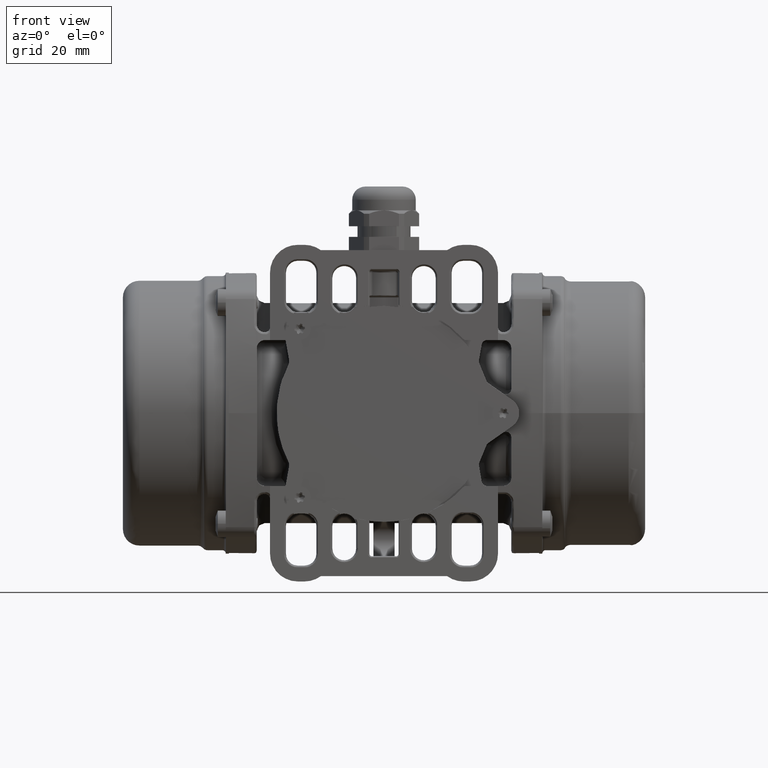
[diagram: clean part render]
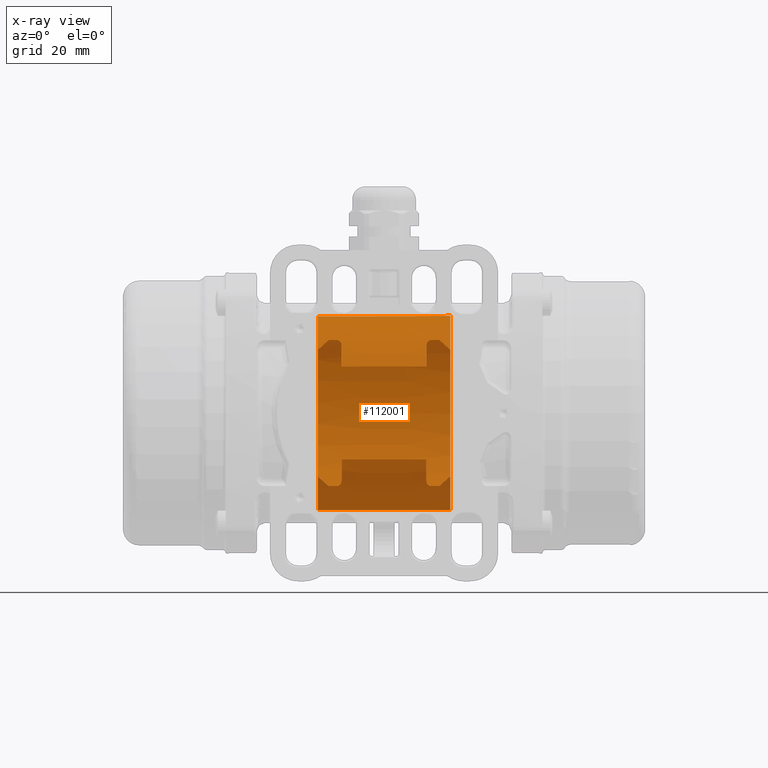
[diagram: x-ray — body ghosted, one internal face saturated and labeled with its STEP entity id]
A machine part, front view, then the same camera in x-ray: the body is ghosted and one INTERNAL B-rep face — a face not visible from any outside direction — is saturated and labeled: STEP entity #112001.
In plain terms, the highlighted face is a freeform B-spline surface patch.
Its self-contained STEP definition (entity closure, byte-faithful):
#161 = CARTESIAN_POINT ( 'NONE',  ( -16.01899122299236200, -26.03783805000156100, -25.77611785485611800 ) ) ;
#235 = CARTESIAN_POINT ( 'NONE',  ( -25.00000000000000000, 36.11027314400615000, -6.126592685133258200 ) ) ;
#277 = CARTESIAN_POINT ( 'NONE',  ( 16.34676661900307300, -25.23338887393017400, -26.63189186395566900 ) ) ;
#637 = CARTESIAN_POINT ( 'NONE',  ( -25.00000000000000400, 35.29042180498816400, -9.840274094785174300 ) ) ;
#790 = CARTESIAN_POINT ( 'NONE',  ( 25.00000000000000000, -3.017239993633374700, -36.74378361360039900 ) ) ;
#974 = CARTESIAN_POINT ( 'NONE',  ( -16.08110345773971900, -25.74911075387679600, -26.06450931056361500 ) ) ;
#1042 = CARTESIAN_POINT ( 'NONE',  ( -24.99999999999999600, 35.64547570673783400, -8.502520104704217400 ) ) ;
#1188 = CARTESIAN_POINT ( 'NONE',  ( 8.333333333333289500, -20.12106795193255200, -30.86265718652770200 ) ) ;
#1382 = CARTESIAN_POINT ( 'NONE',  ( -16.05784556097831100, -25.83350452068177500, -25.98101449191689500 ) ) ;
#1453 = CARTESIAN_POINT ( 'NONE',  ( -24.99999999999999600, -7.402331836127845400, 35.92042519266803400 ) ) ;
#1608 = CARTESIAN_POINT ( 'NONE',  ( 25.00000000000000000, -31.29263532903790000, -19.28054730153190000 ) ) ;
#1880 = CARTESIAN_POINT ( 'NONE',  ( -25.00000000000000400, 11.83192808236184000, 34.67264706926172800 ) ) ;
#1904 = VERTEX_POINT ( 'NONE', #83242 ) ;
#2296 = CARTESIAN_POINT ( 'NONE',  ( -25.00000000000000000, 5.266685251847276200, 36.26506394612944500 ) ) ;
#2383 = CARTESIAN_POINT ( 'NONE',  ( 18.00000002525300100, -24.28721582651700200, 27.49999087695979900 ) ) ;
#2638 = CARTESIAN_POINT ( 'NONE',  ( -16.47366881184741400, -24.98988267610029000, -26.79240977765200100 ) ) ;
#2706 = CARTESIAN_POINT ( 'NONE',  ( -25.00000000000000400, -23.49071100386491700, 28.10112917654096200 ) ) ;
#2948 = CARTESIAN_POINT ( 'NONE',  ( 17.05680724027558200, -24.55003702034545300, 27.26374936299466300 ) ) ;
#3020 = EDGE_CURVE ( 'NONE', #48195, #104908, #86166, .T. ) ;
#3051 = CARTESIAN_POINT ( 'NONE',  ( -16.47481342395198200, -24.98842728310417600, -26.79376433682574500 ) ) ;
#3122 = CARTESIAN_POINT ( 'NONE',  ( -25.00000000000000000, 26.57259259374020700, 25.20521342608809700 ) ) ;
#3163 = CARTESIAN_POINT ( 'NONE',  ( -20.70313610737026600, -24.19945507553908100, 27.50000000000000000 ) ) ;
#3171 = EDGE_CURVE ( 'NONE', #98552, #82542, #71793, .T. ) ;
#3882 = ORIENTED_EDGE ( 'NONE', *, *, #41155, .F. ) ;
#3916 = CARTESIAN_POINT ( 'NONE',  ( -25.00000000000000400, -24.06229484710469900, 27.61158744908760100 ) ) ;
#4176 = CARTESIAN_POINT ( 'NONE',  ( 8.333333333333289500, -9.015117181337789300, 35.72234969794015300 ) ) ;
#5581 = CARTESIAN_POINT ( 'NONE',  ( 25.00005420860682600, -25.24820296060522300, -26.76314244622503900 ) ) ;
#5781 = CARTESIAN_POINT ( 'NONE',  ( 8.333333333333289500, 24.96269080636405100, 27.09653809336195000 ) ) ;
#5972 = CARTESIAN_POINT ( 'NONE',  ( -17.10796079626761600, -24.44403719077006100, 27.29005052737927200 ) ) ;
#5988 = CARTESIAN_POINT ( 'NONE',  ( 25.00005420860682600, -21.50111108260533400, -29.92755132295461400 ) ) ;
#6186 = CARTESIAN_POINT ( 'NONE',  ( -25.00000000000000000, -3.011073971848025300, 36.66869413755080800 ) ) ;
#6373 = CARTESIAN_POINT ( 'NONE',  ( -16.22469867724105800, -25.38089768306499400, 26.42331002342297100 ) ) ;
#6590 = CARTESIAN_POINT ( 'NONE',  ( -25.00000000000000000, 24.92865850805954900, 27.05959666446850100 ) ) ;
#6769 = CARTESIAN_POINT ( 'NONE',  ( -16.11922755454928300, -25.63127340993339200, 26.18021814060070100 ) ) ;
#6863 = CARTESIAN_POINT ( 'NONE',  ( -25.00000000000000400, 17.19039242015417600, -32.34043510452392700 ) ) ;
#6969 = CARTESIAN_POINT ( 'NONE',  ( 8.333333333333289500, 9.065450351134849400, 35.70960530721455200 ) ) ;
#7218 = CARTESIAN_POINT ( 'NONE',  ( 16.00000000015689800, -26.37516396763240000, 25.49999985464939900 ) ) ;
#7262 = CARTESIAN_POINT ( 'NONE',  ( -25.00000000000000000, -8.330181497236726100, -35.67796735784273200 ) ) ;
#7378 = CARTESIAN_POINT ( 'NONE',  ( 8.333333333333289500, 3.066924835166410000, 36.71447000011699700 ) ) ;
#7477 = CARTESIAN_POINT ( 'NONE',  ( 16.00000000000000000, -27.53019386235906700, 24.30525842210814600 ) ) ;
#7670 = CARTESIAN_POINT ( 'NONE',  ( -25.00000000000000000, -19.72631544842911900, -30.85881838049735000 ) ) ;
#7710 = CARTESIAN_POINT ( 'NONE',  ( 16.16220239766304400, -25.58806855297231300, -26.29024256459174700 ) ) ;
#7781 = CARTESIAN_POINT ( 'NONE',  ( 25.00000000000000000, -9.021262455490029800, -35.74670031123115200 ) ) ;
#7821 = B_SPLINE_CURVE_WITH_KNOTS ( 'NONE', 3,
 ( #100228, #81648, #33891, #99827 ),
 .UNSPECIFIED., .F., .F.,
 ( 4, 4 ),
 ( 0.0000000000000000000, 1.000000000000000000 ),
 .UNSPECIFIED. ) ;
#8042 = ORIENTED_EDGE ( 'NONE', *, *, #43507, .F. ) ;
#8068 = CARTESIAN_POINT ( 'NONE',  ( -25.00000000000000700, 17.33779913326898700, -32.26135286368113200 ) ) ;
#8074 = CARTESIAN_POINT ( 'NONE',  ( -16.00000000000000000, -30.50525102807765200, 20.36106950411973000 ) ) ;
#8203 = CARTESIAN_POINT ( 'NONE',  ( 16.00000000031370100, -26.37516396763254900, -25.49999985464960200 ) ) ;
#8254 = EDGE_LOOP ( 'NONE', ( #103406, #14920, #49331, #83998, #121080, #55251, #22786, #93608, #9240, #97352, #121778, #3882, #115360, #8042, #74408, #91643, #89100, #12823, #44845, #54600, #93346, #80543 ) ) ;
#8371 = EDGE_CURVE ( 'NONE', #83782, #122222, #7821, .T. ) ;
#8464 = CARTESIAN_POINT ( 'NONE',  ( -25.00000000000000000, -24.27183731456379700, -27.42757866006659700 ) ) ;
#8502 = CARTESIAN_POINT ( 'NONE',  ( 16.03163763211466300, -26.02783918738051100, -25.85448438657730100 ) ) ;
#8607 = EDGE_CURVE ( 'NONE', #31695, #95200, #87922, .T. ) ;
#8798 = CARTESIAN_POINT ( 'NONE',  ( -23.71710881238577400, -26.71012189833259500, -25.12453976391298100 ) ) ;
#8823 = CARTESIAN_POINT ( 'NONE',  ( 16.02826386626414700, -26.04700254603368500, 25.83517173931285500 ) ) ;
#8865 = CARTESIAN_POINT ( 'NONE',  ( -24.99999999999998900, 30.59354016913768600, -20.15799043763112400 ) ) ;
#8907 = CARTESIAN_POINT ( 'NONE',  ( 16.72593699939901100, -24.79249630020993000, -27.04312409782172100 ) ) ;
#9156 = CARTESIAN_POINT ( 'NONE',  ( -16.04150713558822300, -25.90860067574659800, 25.90600689977045000 ) ) ;
#9191 = CARTESIAN_POINT ( 'NONE',  ( -16.11249262134674300, -25.65056212019129900, -26.16133807844064300 ) ) ;
#9240 = ORIENTED_EDGE ( 'NONE', *, *, #28133, .F. ) ;
#9266 = CARTESIAN_POINT ( 'NONE',  ( -24.99999999999999600, 26.32391157734029700, -25.46481500612607000 ) ) ;
#9300 = CARTESIAN_POINT ( 'NONE',  ( 16.47981779921971000, -25.05456594832409700, -26.79963685100729300 ) ) ;
#9600 = CARTESIAN_POINT ( 'NONE',  ( -16.46960391456276800, -24.99505693225005500, -26.78759378337122100 ) ) ;
#9611 = CARTESIAN_POINT ( 'NONE',  ( 16.00000000000000000, -32.24359288677179300, 17.49999999998810200 ) ) ;
#9667 = CARTESIAN_POINT ( 'NONE',  ( -24.99999999999999600, 34.50454986201300800, -12.29742133629923200 ) ) ;
#9695 = EDGE_CURVE ( 'NONE', #21240, #76437, #94603, .T. ) ;
#9724 = B_SPLINE_CURVE_WITH_KNOTS ( 'NONE', 3,
 ( #12226, #69057, #77325, #22143, #88019, #30395 ),
 .UNSPECIFIED., .F., .F.,
 ( 4, 2, 4 ),
 ( 0.0000000000000000000, 0.5000000000000000000, 1.000000000000000000 ),
 .UNSPECIFIED. ) ;
#9783 = CARTESIAN_POINT ( 'NONE',  ( -16.00000000000000000, -28.53661439245352900, -23.03920855094261500 ) ) ;
#9788 = EDGE_CURVE ( 'NONE', #91199, #16096, #114307, .T. ) ;
#10069 = CARTESIAN_POINT ( 'NONE',  ( -25.00000000000000000, 36.57627564579942700, 2.228605263269550600 ) ) ;
#10222 = CARTESIAN_POINT ( 'NONE',  ( -8.333333333333300200, 9.059270766710080000, -35.68526338130644900 ) ) ;
#10399 = CARTESIAN_POINT ( 'NONE',  ( 16.00000000015689800, -32.24359288677199900, -17.49999999998820100 ) ) ;
#10422 = CARTESIAN_POINT ( 'NONE',  ( -16.11565716273720400, -25.64143662912836800, -26.17027201040587100 ) ) ;
#10488 = CARTESIAN_POINT ( 'NONE',  ( -25.00000000000000000, 34.76955973095505900, -11.51388543603337700 ) ) ;
#10634 = CARTESIAN_POINT ( 'NONE',  ( 8.333333333333289500, 20.16457561410519600, -30.83420500907254800 ) ) ;
#10837 = CARTESIAN_POINT ( 'NONE',  ( -16.42078507798734000, -25.05931790616569200, -26.72771349583479900 ) ) ;
#10909 = CARTESIAN_POINT ( 'NONE',  ( -25.00000000000000400, -14.23640878746536300, 33.74509089601519900 ) ) ;
#11312 = CARTESIAN_POINT ( 'NONE',  ( -25.00000000000000400, 24.72944555099873700, 27.04481029954458300 ) ) ;
#11659 = CARTESIAN_POINT ( 'NONE',  ( -16.67294089073127200, -24.76317023729879100, -27.00225331486403800 ) ) ;
#11725 = CARTESIAN_POINT ( 'NONE',  ( -25.00000000000000000, 22.50515637061882000, 28.89522792631442300 ) ) ;
#12144 = CARTESIAN_POINT ( 'NONE',  ( -25.00000000000000000, -11.55910531959511400, 34.77633757196903000 ) ) ;
#12226 = CARTESIAN_POINT ( 'NONE',  ( 16.00000000031370100, -26.37516396763254900, -25.49999985464960200 ) ) ;
#12291 = CARTESIAN_POINT ( 'NONE',  ( -17.99999997210860100, -24.20556235815179800, 27.49998990723825200 ) ) ;
#12382 = CARTESIAN_POINT ( 'NONE',  ( 16.22345796229705100, -25.44825066734263400, 26.42642225362186200 ) ) ;
#12487 = CARTESIAN_POINT ( 'NONE',  ( -17.69909968408301300, -24.20627582288897300, -27.49999999999999600 ) ) ;
#12559 = CARTESIAN_POINT ( 'NONE',  ( -25.00000000000000400, 17.58296800518421000, 32.12838360053648800 ) ) ;
#12618 = VERTEX_POINT ( 'NONE', #94392 ) ;
#12823 = ORIENTED_EDGE ( 'NONE', *, *, #32934, .F. ) ;
#13097 = FACE_OUTER_BOUND ( 'NONE', #8254, .T. ) ;
#13368 = CARTESIAN_POINT ( 'NONE',  ( -25.00000000000000000, -26.70009887296479800, 25.13324806834705100 ) ) ;
#14021 = CARTESIAN_POINT ( 'NONE',  ( 16.57118478039459900, -24.94008620801573200, 26.90684907578650400 ) ) ;
#14858 = CARTESIAN_POINT ( 'NONE',  ( -25.00000000000000000, -24.89063732319455000, 27.09444901341550200 ) ) ;
#14920 = ORIENTED_EDGE ( 'NONE', *, *, #3020, .F. ) ;
#15045 = CARTESIAN_POINT ( 'NONE',  ( -17.39595930600310000, -24.31122938360255900, 27.40821598081700100 ) ) ;
#15266 = CARTESIAN_POINT ( 'NONE',  ( 8.333333333333289500, 29.08049819591840200, -22.62040966549399800 ) ) ;
#15479 = CARTESIAN_POINT ( 'NONE',  ( 25.00005420860682600, 35.05559934589177800, 11.36074742704982300 ) ) ;
#15562 = CARTESIAN_POINT ( 'NONE',  ( -25.00000000000000000, -26.37542883668022100, -25.43867921855281400 ) ) ;
#15668 = CARTESIAN_POINT ( 'NONE',  ( 8.333333333333289500, -3.015184653038260400, 36.71875378825055200 ) ) ;
#15860 = CARTESIAN_POINT ( 'NONE',  ( -16.14003174418654400, -25.57464572523494100, 26.23554859876075800 ) ) ;
#16066 = CARTESIAN_POINT ( 'NONE',  ( 8.333333333333289500, 34.84789825794784700, 11.95752047022544000 ) ) ;
#16096 = VERTEX_POINT ( 'NONE', #84226 ) ;
#16258 = CARTESIAN_POINT ( 'NONE',  ( -16.18267870390163300, -25.47160838588618100, 26.33569872156957800 ) ) ;
#16355 = CARTESIAN_POINT ( 'NONE',  ( -25.00000000000000000, 21.85386193663260100, -29.39087867210198400 ) ) ;
#16467 = CARTESIAN_POINT ( 'NONE',  ( -8.333333333333300200, 20.15083016378885400, 30.81318646441745200 ) ) ;
#16661 = CARTESIAN_POINT ( 'NONE',  ( -17.69688272086948200, -24.22613345806334500, 27.48294382623887300 ) ) ;
#16760 = CARTESIAN_POINT ( 'NONE',  ( -25.00000000000000700, -23.40802656571941000, -28.18349137886913900 ) ) ;
#16867 = CARTESIAN_POINT ( 'NONE',  ( -25.00000000000000000, 34.80038919420150000, 11.94121846549440000 ) ) ;
#17057 = CARTESIAN_POINT ( 'NONE',  ( -16.00000000000002800, -26.24368848057907800, 25.56671920168275500 ) ) ;
#17166 = CARTESIAN_POINT ( 'NONE',  ( -25.00000000000000700, -20.35405384155992100, -30.44995038654911900 ) ) ;
#17262 = CARTESIAN_POINT ( 'NONE',  ( 25.00000000000000000, -29.06788686680360100, -22.67774944367085200 ) ) ;
#17558 = CARTESIAN_POINT ( 'NONE',  ( -24.99999999999999300, 14.74387845902516500, -33.54711119491121700 ) ) ;
#17602 = CARTESIAN_POINT ( 'NONE',  ( 16.51909269346238700, -25.00668849228647500, -26.84442219822662800 ) ) ;
#17971 = CARTESIAN_POINT ( 'NONE',  ( -25.00000000000000400, -17.65313925592431200, -32.11438849019769700 ) ) ;
#18012 = CARTESIAN_POINT ( 'NONE',  ( 16.00000000031370100, -26.37516396763254900, -25.49999985464960200 ) ) ;
#18149 = CARTESIAN_POINT ( 'NONE',  ( 20.70299477747989400, -24.29335213941006400, 27.50000000000000000 ) ) ;
#18325 = CARTESIAN_POINT ( 'NONE',  ( 16.11554386901841700, -25.71079479674700600, 26.16995368158214300 ) ) ;
#18365 = CARTESIAN_POINT ( 'NONE',  ( -24.99999999999999600, 36.62498699990635500, 0.8929189167557792800 ) ) ;
#18410 = CARTESIAN_POINT ( 'NONE',  ( 16.12019241098148100, -25.69763897676294900, -26.18288222590260300 ) ) ;
#18775 = CARTESIAN_POINT ( 'NONE',  ( -24.99999999999999300, 24.02487677097021600, -27.67259600810226400 ) ) ;
#18808 = CARTESIAN_POINT ( 'NONE',  ( 16.06530225167562900, -25.87488574303018400, -26.00771956441676400 ) ) ;
#19013 = CARTESIAN_POINT ( 'NONE',  ( -5.333333333288132700, -32.20717649014461900, 17.50000000000000000 ) ) ;
#19119 = CARTESIAN_POINT ( 'NONE',  ( -16.04255991151117300, -25.89779240050851100, -25.91697104662836900 ) ) ;
#19187 = CARTESIAN_POINT ( 'NONE',  ( -25.00000000000000000, 33.30099311587651600, 15.24912172274639800 ) ) ;
#19332 = CARTESIAN_POINT ( 'NONE',  ( -25.00000000000000000, -29.00848382824749900, -22.63140526905845100 ) ) ;
#19488 = CARTESIAN_POINT ( 'NONE',  ( 20.49390155713560100, -24.29286683651725200, 27.49999089121929800 ) ) ;
#19603 = CARTESIAN_POINT ( 'NONE',  ( -25.00000000000000000, 35.08665232170233800, 10.50339329907777900 ) ) ;
#19739 = CARTESIAN_POINT ( 'NONE',  ( -8.333333333333300200, 3.064834225190155200, -36.68944309486810300 ) ) ;
#19882 = EDGE_CURVE ( 'NONE', #1904, #16096, #108196, .T. ) ;
#20010 = CARTESIAN_POINT ( 'NONE',  ( -25.00000000000000400, 26.73685250694498100, 25.03092512804799700 ) ) ;
#20156 = CARTESIAN_POINT ( 'NONE',  ( 8.333333333333289500, 14.81691559992836100, -33.73154788877674500 ) ) ;
#20417 = CARTESIAN_POINT ( 'NONE',  ( -25.00000000000000400, 7.592477896159740800, 35.82943349136009900 ) ) ;
#20840 = CARTESIAN_POINT ( 'NONE',  ( -25.00000000000000000, 9.056690995861984600, 35.49255684519044300 ) ) ;
#21228 = CARTESIAN_POINT ( 'NONE',  ( -24.99999999999999600, 22.22276765220928100, 29.11258532960262000 ) ) ;
#21240 = VERTEX_POINT ( 'NONE', #50964 ) ;
#21469 = CARTESIAN_POINT ( 'NONE',  ( 16.83185099988190100, -24.70336731787672900, 27.12477580739670200 ) ) ;
#21645 = CARTESIAN_POINT ( 'NONE',  ( -25.00000000000000400, -15.54445504413278200, 33.17615011183068700 ) ) ;
#22054 = CARTESIAN_POINT ( 'NONE',  ( -24.99999999999999600, 7.754110143997368500, 35.79480329957377200 ) ) ;
#22143 = CARTESIAN_POINT ( 'NONE',  ( 16.00000000000000000, -30.56334984603030200, -20.36027064669884700 ) ) ;
#22352 = B_SPLINE_CURVE_WITH_KNOTS ( 'NONE', 3,
 ( #99820, #24432, #43372, #72563 ),
 .UNSPECIFIED., .F., .F.,
 ( 4, 4 ),
 ( 0.0000000000000000000, 1.000000000000000000 ),
 .UNSPECIFIED. ) ;
#22786 = ORIENTED_EDGE ( 'NONE', *, *, #74036, .F. ) ;
#23009 = CARTESIAN_POINT ( 'NONE',  ( -18.83130046335768500, -24.20366649823641600, 27.50000000000000000 ) ) ;
#23539 = CARTESIAN_POINT ( 'NONE',  ( 8.333333333333289500, -31.27131881995815700, 19.26741341372435200 ) ) ;
#23598 = VERTEX_POINT ( 'NONE', #9611 ) ;
#23752 = CARTESIAN_POINT ( 'NONE',  ( 25.00005420860682600, 11.49414554232422200, 35.01208704942970200 ) ) ;
#24354 = CARTESIAN_POINT ( 'NONE',  ( 8.333333333333390800, -20.12106795193250300, 30.86265718652770200 ) ) ;
#24432 = CARTESIAN_POINT ( 'NONE',  ( 18.83130055328039600, -24.28909181786012900, 27.50000000000000000 ) ) ;
#24561 = CARTESIAN_POINT ( 'NONE',  ( 25.00005420860682600, 26.10682201884868500, -26.00760411504862500 ) ) ;
#24756 = CARTESIAN_POINT ( 'NONE',  ( -25.00000000000000000, 29.04085198160900200, -22.58957066117839900 ) ) ;
#24945 = CARTESIAN_POINT ( 'NONE',  ( -17.28525802278160100, -24.35617188759428900, 27.36833676123023600 ) ) ;
#25159 = CARTESIAN_POINT ( 'NONE',  ( -8.333333333333300200, 9.059270766710080000, 35.68526338130644900 ) ) ;
#25328 = CARTESIAN_POINT ( 'NONE',  ( -15.99999999982270200, -26.30835756529455300, 25.49999991771964900 ) ) ;
#25348 = CARTESIAN_POINT ( 'NONE',  ( -16.67392415751820800, -24.76669446318640400, 26.99877905948294200 ) ) ;
#25367 = CARTESIAN_POINT ( 'NONE',  ( 25.00005420860682600, 21.72825253304514000, 29.76314279418771100 ) ) ;
#25404 = B_SPLINE_CURVE_WITH_KNOTS ( 'NONE', 3,
 ( #94906, #75928, #84599, #104403, #84995, #65654, #161, #48363, #38059, #103190, #19119, #1382, #974, #29415, #38877, #46715, #9191, #10422, #94082, #66863, #47118, #28582, #76333, #114290, #67277, #113039, #10837, #56628, #66041, #9600, #2638, #3051, #87039, #11659, #96974, #30652, #96563, #105655, #106081, #115527, #68512, #30245, #40505, #50421, #12487, #78411 ),
 .UNSPECIFIED., .F., .F.,
 ( 4, 2, 2, 1, 2, 2, 2, 2, 1, 1, 1, 2, 2, 2, 2, 1, 1, 1, 2, 2, 2, 2, 1, 1, 1, 2, 2, 4 ),
 ( 0.0000000000000000000, 0.06249999999995578500, 0.09374999999993367800, 0.1093749999999241900, 0.1171874999999194400, 0.1249999999999147100, 0.1874999999998688500, 0.2187499999998459300, 0.2343749999998348300, 0.2421874999998320200, 0.2460937499998334900, 0.2480468749998350200, 0.2499999999998365200, 0.3749999999999061300, 0.4374999999999417700, 0.4687499999999589800, 0.4843749999999675800, 0.4921874999999699100, 0.4960937499999710200, 0.4999999999999721300, 0.6249999999999941200, 0.6875000000000050000, 0.7187500000000121000, 0.7343750000000157700, 0.7421875000000168800, 0.7460937500000181000, 0.7500000000000193200, 1.000000000000000000 ),
 .UNSPECIFIED. ) ;
#25556 = CARTESIAN_POINT ( 'NONE',  ( -25.00000000000000000, 24.92865850805949900, -27.05959666446850100 ) ) ;
#25754 = CARTESIAN_POINT ( 'NONE',  ( -16.99432263647801700, -24.50779482343402200, 27.23314758877237900 ) ) ;
#25857 = CARTESIAN_POINT ( 'NONE',  ( -25.00000000000000400, -2.669836258230541900, -36.53982749296920900 ) ) ;
#25960 = CARTESIAN_POINT ( 'NONE',  ( 25.00000000000000000, 29.10032130307309800, 22.63582916765180300 ) ) ;
#26212 = CARTESIAN_POINT ( 'NONE',  ( 16.00061918218805700, -26.30134024846118700, 25.57615606795261000 ) ) ;
#26259 = CARTESIAN_POINT ( 'NONE',  ( -25.00000000000000400, -16.17984199105716700, -32.86340320242229000 ) ) ;
#26364 = CARTESIAN_POINT ( 'NONE',  ( 25.00000000000000000, 36.36508392665694300, -6.065487045046349800 ) ) ;
#26655 = CARTESIAN_POINT ( 'NONE',  ( -25.00000000000000400, -19.77375888124744900, -30.82843807352042000 ) ) ;
#26661 = CARTESIAN_POINT ( 'NONE',  ( -16.00000000000000000, -31.39460290462824700, 18.96102806417340100 ) ) ;
#26761 = CARTESIAN_POINT ( 'NONE',  ( -8.333333333333300200, -29.02828484109955200, -22.64685332726254800 ) ) ;
#27060 = CARTESIAN_POINT ( 'NONE',  ( -24.99999999999999600, 17.48322694812946000, -32.18277179479258600 ) ) ;
#27097 = CARTESIAN_POINT ( 'NONE',  ( 16.88475908883419800, -24.65884443058000400, -27.16556649617364300 ) ) ;
#27409 = CARTESIAN_POINT ( 'NONE',  ( 16.08860465332936900, -25.79271511806905400, 26.08923323283560300 ) ) ;
#27456 = CARTESIAN_POINT ( 'NONE',  ( -25.00000000000000000, -3.850927632394672600, -36.42218853086328100 ) ) ;
#27494 = CARTESIAN_POINT ( 'NONE',  ( 16.48949485239143800, -25.04256036172844100, -26.81087541455218200 ) ) ;
#27804 = CARTESIAN_POINT ( 'NONE',  ( 16.10012733646922500, -25.75645571476612600, 26.12501268455642000 ) ) ;
#27850 = CARTESIAN_POINT ( 'NONE',  ( -25.00000000000000700, 35.84796701468983600, 7.603689727470647400 ) ) ;
#28133 = EDGE_CURVE ( 'NONE', #12618, #21240, #115570, .T. ) ;
#28258 = CARTESIAN_POINT ( 'NONE',  ( -25.00000000000000000, 36.21844556248009900, -5.442272675517764400 ) ) ;
#28290 = CARTESIAN_POINT ( 'NONE',  ( 16.18252135292899000, -25.54174123043226200, -26.33535579138231600 ) ) ;
#28582 = CARTESIAN_POINT ( 'NONE',  ( -16.16609161120329200, -25.49857852265304100, -26.31006054340986500 ) ) ;
#28647 = CARTESIAN_POINT ( 'NONE',  ( -25.00000000000000400, 33.04938809050502600, 15.78426576589394200 ) ) ;
#28805 = CARTESIAN_POINT ( 'NONE',  ( -25.00000000000000000, -32.19001765206735400, -17.46978501755509700 ) ) ;
#29062 = CARTESIAN_POINT ( 'NONE',  ( -25.00000000000000400, 25.23730646979107200, -26.54936758286127600 ) ) ;
#29209 = CARTESIAN_POINT ( 'NONE',  ( -8.333333333333300200, -20.10735215919090300, -30.84161924706860000 ) ) ;
#29415 = CARTESIAN_POINT ( 'NONE',  ( -16.08892087827995700, -25.72298584043098300, -26.09025145292782000 ) ) ;
#29487 = CARTESIAN_POINT ( 'NONE',  ( -25.00000000000000000, 36.17469380931808600, -5.727699953793938400 ) ) ;
#29605 = CARTESIAN_POINT ( 'NONE',  ( -18.94422221866650300, -24.20343095407058000, -27.50000000000000000 ) ) ;
#29646 = CARTESIAN_POINT ( 'NONE',  ( -8.333333333333300200, -24.90762751931960400, -27.11294351786154900 ) ) ;
#29701 = CARTESIAN_POINT ( 'NONE',  ( 18.00000002133040100, -24.28721755750935100, -27.49998934097154900 ) ) ;
#29809 = CARTESIAN_POINT ( 'NONE',  ( 20.83266667732399900, -24.29363617065340000, -27.49998934523609900 ) ) ;
#29911 = CARTESIAN_POINT ( 'NONE',  ( -25.00000000000000000, -3.376936861377315400, 36.46918420200135100 ) ) ;
#30056 = CARTESIAN_POINT ( 'NONE',  ( -25.00000000000000000, 3.062743615213894700, -36.66441618961920300 ) ) ;
#30175 = B_SPLINE_CURVE_WITH_KNOTS ( 'NONE', 3,
 ( #92717, #18149, #36308, #112089 ),
 .UNSPECIFIED., .F., .F.,
 ( 4, 4 ),
 ( 0.0000000000000000000, 1.000000000000000000 ),
 .UNSPECIFIED. ) ;
#30245 = CARTESIAN_POINT ( 'NONE',  ( -17.09763198547122400, -24.44984584339936300, -27.28486606494234200 ) ) ;
#30309 = CARTESIAN_POINT ( 'NONE',  ( -24.99999999999999300, 22.83088600651669600, 28.63987580064678800 ) ) ;
#30395 = CARTESIAN_POINT ( 'NONE',  ( 16.00000000015689800, -32.24359288677199900, -17.49999999998820100 ) ) ;
#30652 = CARTESIAN_POINT ( 'NONE',  ( -16.88556338589428300, -24.58707647417512700, -27.16197270099163700 ) ) ;
#30727 = CARTESIAN_POINT ( 'NONE',  ( -25.00000000000000000, 10.56185630077508400, 35.08899846132980100 ) ) ;
#30731 = EDGE_CURVE ( 'NONE', #105347, #12618, #9724, .T. ) ;
#30766 = CARTESIAN_POINT ( 'NONE',  ( -21.10565977434939800, -24.43393352711345300, 27.29103868951585100 ) ) ;
#31135 = CARTESIAN_POINT ( 'NONE',  ( -25.00000000000000000, 18.23999926290743500, 31.76144504510727300 ) ) ;
#31370 = CARTESIAN_POINT ( 'NONE',  ( 16.42069622818636900, -25.13140483720525600, 26.72760129337180900 ) ) ;
#31420 = EDGE_CURVE ( 'NONE', #42362, #95200, #30175, .T. ) ;
#31452 = EDGE_CURVE ( 'NONE', #48195, #87992, #63354, .T. ) ;
#31535 = CARTESIAN_POINT ( 'NONE',  ( -25.00000000000000400, 3.663272137327356700, 36.44656211051693600 ) ) ;
#31695 = VERTEX_POINT ( 'NONE', #45892 ) ;
#32165 = CARTESIAN_POINT ( 'NONE',  ( 17.08091846224091300, -24.53608333390220500, 27.27634293038595500 ) ) ;
#32187 = CARTESIAN_POINT ( 'NONE',  ( 25.00000000000000000, -20.13478374467409900, 30.88369512598685100 ) ) ;
#32563 = CARTESIAN_POINT ( 'NONE',  ( 17.09815216732838300, -24.52634826868556000, 27.28512896763754400 ) ) ;
#32934 = EDGE_CURVE ( 'NONE', #59288, #90198, #51220, .T. ) ;
#32995 = CARTESIAN_POINT ( 'NONE',  ( 8.333333333333289500, -14.76937648145580100, 33.75237624243155200 ) ) ;
#33212 = CARTESIAN_POINT ( 'NONE',  ( 25.00005420860682600, 29.84566128442810800, -21.61476648186482000 ) ) ;
#33592 = CARTESIAN_POINT ( 'NONE',  ( -16.34697553272154400, -25.16172375489309900, 26.63219202597860800 ) ) ;
#33608 = CARTESIAN_POINT ( 'NONE',  ( 25.00005420860682600, 5.889388280611889600, 36.37687115867888100 ) ) ;
#33814 = CARTESIAN_POINT ( 'NONE',  ( -8.333333333333300200, -31.25000231087845400, 19.25427952591675100 ) ) ;
#33891 = CARTESIAN_POINT ( 'NONE',  ( 23.71434765809497200, -26.80565712668821000, -25.12687930452491300 ) ) ;
#33998 = CARTESIAN_POINT ( 'NONE',  ( -17.16707898652095900, -24.41215105263275100, 27.31849659205340300 ) ) ;
#34019 = CARTESIAN_POINT ( 'NONE',  ( 25.00005420860682600, -16.56701954118351900, 32.91652571271136200 ) ) ;
#34216 = CARTESIAN_POINT ( 'NONE',  ( 25.00000000000000000, 34.87165278982104900, 11.96567147259097800 ) ) ;
#34331 = CARTESIAN_POINT ( 'NONE',  ( -15.99999999989780100, -26.30835756529450000, -25.49999991771955300 ) ) ;
#34415 = CARTESIAN_POINT ( 'NONE',  ( -16.51904109009037600, -24.93398832077293600, 26.84436532278295900 ) ) ;
#34525 = CARTESIAN_POINT ( 'NONE',  ( -15.99999999982270200, -26.30835756529455300, 25.49999991771964900 ) ) ;
#34555 = CARTESIAN_POINT ( 'NONE',  ( 17.28562385291375100, -24.43394790926245700, -27.36847594542149100 ) ) ;
#34627 = CARTESIAN_POINT ( 'NONE',  ( 25.00000000000000000, 9.071629935559620600, 35.73394723312269900 ) ) ;
#34814 = CARTESIAN_POINT ( 'NONE',  ( -16.12175244665320400, -25.62417573134777600, 26.18716144157576800 ) ) ;
#34836 = CARTESIAN_POINT ( 'NONE',  ( 25.00005420860682600, 29.84566128442810800, 21.61476648186486900 ) ) ;
#35027 = CARTESIAN_POINT ( 'NONE',  ( 8.333333333333289500, 32.40577525386589700, 17.52780759248529900 ) ) ;
#35179 = B_SPLINE_CURVE_WITH_KNOTS ( 'NONE', 3,
 ( #62856, #43095, #80143, #108635, #34019, #90034, #53808, #43900, #33608, #23752, #109036, #25367, #90857, #34836, #52578, #15479, #89609, #119708, #100767, #71056, #100362, #33212, #24561, #118508, #99146, #118908, #52176, #62048, #52995, #62448, #119304, #5988, #5581, #118104, #61630 ),
 .UNSPECIFIED., .F., .F.,
 ( 4, 1, 1, 1, 1, 1, 1, 1, 1, 1, 1, 1, 1, 1, 1, 1, 1, 1, 1, 1, 1, 1, 1, 1, 1, 1, 1, 1, 1, 1, 1, 1, 4 ),
 ( 0.0000000000000000000, 0.01772047723071383500, 0.04987244541533290100, 0.08202441359995192600, 0.1141763817845711000, 0.1463283499691900000, 0.1784803181538091900, 0.2106322863384283700, 0.2427842545230475000, 0.2749362227076667100, 0.3070881908922858900, 0.3392401590769045200, 0.3713921272615237100, 0.4035440954461429500, 0.4356960636307621300, 0.4678480318153813200, 0.5000000000000004400, 0.5321519681846190700, 0.5643039363692377000, 0.5964559045538568900, 0.6286078727384761800, 0.6607598409230952500, 0.6929118091077155500, 0.7250637772923336200, 0.7572157454769528100, 0.7893677136615717700, 0.8215196818461898400, 0.8536716500308113600, 0.8858236182154301000, 0.9179755864000485000, 0.9501275545846672400, 0.9822795227692858700, 1.000000000000000000 ),
 .UNSPECIFIED. ) ;
#35215 = CARTESIAN_POINT ( 'NONE',  ( -16.49827427798637200, -24.95917619913010900, 26.82096948500401400 ) ) ;
#35316 = CARTESIAN_POINT ( 'NONE',  ( -25.00000000000000000, 7.422816335092905500, -35.86496798398635400 ) ) ;
#35435 = CARTESIAN_POINT ( 'NONE',  ( -8.333333333333300200, 29.06067508876370200, 22.60499016333620000 ) ) ;
#35724 = CARTESIAN_POINT ( 'NONE',  ( -25.00000000000000400, -21.02260495863362200, -29.99702540555435000 ) ) ;
#35829 = CARTESIAN_POINT ( 'NONE',  ( -25.00000000000000000, 36.29076836004929900, -6.053091635553750300 ) ) ;
#36128 = CARTESIAN_POINT ( 'NONE',  ( -25.00000000000000400, -6.928594895464307500, -35.98612431873965500 ) ) ;
#36174 = CARTESIAN_POINT ( 'NONE',  ( 16.08850906465207200, -25.79081731330885000, -26.09121953446631500 ) ) ;
#36308 = CARTESIAN_POINT ( 'NONE',  ( 20.92390853900970200, -24.37197956554419100, 27.43160297126988900 ) ) ;
#36525 = CARTESIAN_POINT ( 'NONE',  ( -25.00000000000000000, 18.34587952930021300, -31.71235718611974300 ) ) ;
#36720 = CARTESIAN_POINT ( 'NONE',  ( 23.79391453780458600, -26.87696370910047600, 25.04321362140315400 ) ) ;
#36886 = CARTESIAN_POINT ( 'NONE',  ( 16.02634860280453200, -26.05834005181112900, 25.82373046350397100 ) ) ;
#36931 = CARTESIAN_POINT ( 'NONE',  ( -25.00000000000000000, -20.01635639405152000, -30.67181943364180400 ) ) ;
#36973 = CARTESIAN_POINT ( 'NONE',  ( 16.12918474732497400, -25.67283772742732100, -26.20723441242528300 ) ) ;
#37279 = CARTESIAN_POINT ( 'NONE',  ( 16.11781211957987000, -25.70434608941695500, 26.17629178865295400 ) ) ;
#37333 = CARTESIAN_POINT ( 'NONE',  ( -25.00000000000000400, 36.20110460294058900, -5.556479156151636900 ) ) ;
#37728 = CARTESIAN_POINT ( 'NONE',  ( -25.00000000000000400, 35.05334609979921400, 10.61400308809880300 ) ) ;
#38059 = CARTESIAN_POINT ( 'NONE',  ( -16.02644649529746000, -25.99002115081370300, -25.82432077140022400 ) ) ;
#38122 = CARTESIAN_POINT ( 'NONE',  ( -24.99999999999999600, 22.93067286218736800, -28.57396156245500800 ) ) ;
#38243 = CARTESIAN_POINT ( 'NONE',  ( -16.00000000000000000, -31.39477804467174900, -18.96070593973293900 ) ) ;
#38325 = CARTESIAN_POINT ( 'NONE',  ( 20.83266667732399900, -24.29363617065340000, -27.49998934523609900 ) ) ;
#38439 = CARTESIAN_POINT ( 'NONE',  ( -5.333333333288132700, -32.20717649014462600, -17.50000000000000000 ) ) ;
#38538 = CARTESIAN_POINT ( 'NONE',  ( -25.00000000000000000, 36.29042479436568400, 4.941498007007892200 ) ) ;
#38678 = CARTESIAN_POINT ( 'NONE',  ( -8.333333333333300200, 20.15083016378885400, -30.81318646441745200 ) ) ;
#38877 = CARTESIAN_POINT ( 'NONE',  ( -16.10038808093266000, -25.68680798349606000, -26.12580316691975900 ) ) ;
#38941 = CARTESIAN_POINT ( 'NONE',  ( -25.00000000000000000, 33.36027787587889300, -15.14525928814605900 ) ) ;
#39097 = CARTESIAN_POINT ( 'NONE',  ( -8.333333333333300200, -32.21199036036230000, -17.48170978548515100 ) ) ;
#39345 = CARTESIAN_POINT ( 'NONE',  ( -25.00000000000000000, -18.26352472335952000, 31.75270378066566600 ) ) ;
#39749 = CARTESIAN_POINT ( 'NONE',  ( -25.00000000000000700, 2.167344763770609800, 36.56086365256599900 ) ) ;
#40163 = CARTESIAN_POINT ( 'NONE',  ( -25.00000000000000000, -20.45635710542581300, 30.39378751339137000 ) ) ;
#40505 = CARTESIAN_POINT ( 'NONE',  ( -17.10007317749807100, -24.44846239469669400, -27.28610089736567800 ) ) ;
#40575 = CARTESIAN_POINT ( 'NONE',  ( -25.00000000000000700, -3.141296325228952300, 36.49025003149996800 ) ) ;
#40989 = CARTESIAN_POINT ( 'NONE',  ( -24.99999999999999600, 2.455548043178724900, 36.54292427366949900 ) ) ;
#41155 = EDGE_CURVE ( 'NONE', #83782, #83146, #63902, .T. ) ;
#41387 = CARTESIAN_POINT ( 'NONE',  ( -24.99999999999999600, -25.44843170046409500, 26.39987541725740900 ) ) ;
#41624 = CARTESIAN_POINT ( 'NONE',  ( 16.16594624494220200, -25.56858201766095100, 26.30969968991635400 ) ) ;
#41648 = CARTESIAN_POINT ( 'NONE',  ( -25.00000000000000000, -14.74924099886350100, 33.70636073289860200 ) ) ;
#42062 = CARTESIAN_POINT ( 'NONE',  ( -25.00000000000000000, -9.002826633033310000, 35.67364847135809900 ) ) ;
#42205 = CARTESIAN_POINT ( 'NONE',  ( -25.00000000000000400, -23.92989032314288500, 27.72642754139051000 ) ) ;
#42362 = VERTEX_POINT ( 'NONE', #19488 ) ;
#42468 = CARTESIAN_POINT ( 'NONE',  ( -8.333333333333300200, -24.90762751931960400, 27.11294351786154900 ) ) ;
#42886 = CARTESIAN_POINT ( 'NONE',  ( -25.00000000000000000, -29.00848382824744900, 22.63140526905845100 ) ) ;
#43095 = CARTESIAN_POINT ( 'NONE',  ( 25.00005420860683000, -27.27321694884667700, 24.57985317510836200 ) ) ;
#43298 = CARTESIAN_POINT ( 'NONE',  ( 25.00000000000000000, 32.42786508021485000, -17.53975565492054800 ) ) ;
#43372 = CARTESIAN_POINT ( 'NONE',  ( 19.66260106389996700, -24.29097549104141500, 27.50000000000000000 ) ) ;
#43507 = EDGE_CURVE ( 'NONE', #31695, #122222, #35179, .T. ) ;
#43627 = CARTESIAN_POINT ( 'NONE',  ( 17.69696378988971800, -24.30633615572528000, -27.48294849918493900 ) ) ;
#43694 = CARTESIAN_POINT ( 'NONE',  ( -8.333333333333300200, 36.81722989220740100, -2.960595000000000100E-016 ) ) ;
#43900 = CARTESIAN_POINT ( 'NONE',  ( 25.00005420860682600, 0.1403143089344263700, 36.85026275251559700 ) ) ;
#44098 = CARTESIAN_POINT ( 'NONE',  ( 25.00000000000000000, 34.87165278982104900, -11.96567147259097800 ) ) ;
#44500 = CARTESIAN_POINT ( 'NONE',  ( -8.333333333333300200, 32.38368542751700100, -17.51585953005005100 ) ) ;
#44595 = EDGE_CURVE ( 'NONE', #90198, #42362, #22352, .T. ) ;
#44679 = CARTESIAN_POINT ( 'NONE',  ( -20.49390150369750100, -24.19990025369670100, 27.49998978654325300 ) ) ;
#44697 = CARTESIAN_POINT ( 'NONE',  ( -16.47976401595649400, -24.98218408714993900, 26.79957391730491200 ) ) ;
#44800 = CARTESIAN_POINT ( 'NONE',  ( -25.00000000000000400, 20.87263715480649400, -30.10156923869291400 ) ) ;
#44845 = ORIENTED_EDGE ( 'NONE', *, *, #61034, .F. ) ;
#44904 = CARTESIAN_POINT ( 'NONE',  ( -25.00000000000000000, 36.79211581997534400, -4.440891999999999300E-016 ) ) ;
#45100 = CARTESIAN_POINT ( 'NONE',  ( -16.05790442255352300, -25.83553523308252100, 25.97890029115456300 ) ) ;
#45194 = CARTESIAN_POINT ( 'NONE',  ( -25.00000000000000000, 22.08473293366448300, -29.21743838181777500 ) ) ;
#45294 = CARTESIAN_POINT ( 'NONE',  ( 8.333333333333289500, -3.015184653038260400, -36.71875378825055200 ) ) ;
#45408 = CARTESIAN_POINT ( 'NONE',  ( -15.99999999988420100, -32.18896830772825300, 17.49999999136325000 ) ) ;
#45482 = CARTESIAN_POINT ( 'NONE',  ( -16.08884803924011900, -25.72100608399683700, 26.09231494099774900 ) ) ;
#45584 = CARTESIAN_POINT ( 'NONE',  ( -25.00000000000000400, 17.43596450397067300, -32.20840007588101600 ) ) ;
#45684 = CARTESIAN_POINT ( 'NONE',  ( -25.00000000000000000, -20.09363636644929900, -30.82058130760945100 ) ) ;
#45871 = CARTESIAN_POINT ( 'NONE',  ( -16.00163130389698200, -26.13093781350393000, 25.68279818748551700 ) ) ;
#45892 = CARTESIAN_POINT ( 'NONE',  ( 25.00002702149230100, -27.95779363035839900, 23.77495985455495000 ) ) ;
#45980 = CARTESIAN_POINT ( 'NONE',  ( -25.00000000000000400, 21.52887108040087600, -29.63097528485803500 ) ) ;
#46176 = CARTESIAN_POINT ( 'NONE',  ( 22.49580114849360500, -25.72803890291669800, 26.21602950566452300 ) ) ;
#46337 = CARTESIAN_POINT ( 'NONE',  ( 16.00639889738637900, -26.21706719556072300, 25.66243612279228600 ) ) ;
#46381 = CARTESIAN_POINT ( 'NONE',  ( -24.99999999999999600, 10.99415150908867000, -34.98157198974840300 ) ) ;
#46420 = CARTESIAN_POINT ( 'NONE',  ( 16.04137483608786500, -25.97725559761211800, -25.90535892465016600 ) ) ;
#46715 = CARTESIAN_POINT ( 'NONE',  ( -16.10605786738372200, -25.66947143333703700, -26.14281386574504800 ) ) ;
#46741 = CARTESIAN_POINT ( 'NONE',  ( 16.04241426193931000, -25.96662678906946600, 25.91617368563501200 ) ) ;
#46787 = CARTESIAN_POINT ( 'NONE',  ( -24.99999999999999600, 27.73599231057635400, -23.99545909190456400 ) ) ;
#47118 = CARTESIAN_POINT ( 'NONE',  ( -16.11804437234618700, -25.63462358266196300, -26.17693999459344300 ) ) ;
#47182 = CARTESIAN_POINT ( 'NONE',  ( -24.99999999999999600, 34.27503824569772900, 12.96877121956192600 ) ) ;
#47592 = CARTESIAN_POINT ( 'NONE',  ( -25.00000000000000000, 26.07698384133940600, -25.71763993259250500 ) ) ;
#48019 = CARTESIAN_POINT ( 'NONE',  ( -25.00000000000000000, 27.54412425623315000, 24.14791630984758800 ) ) ;
#48167 = CARTESIAN_POINT ( 'NONE',  ( -25.00000000000000000, -14.74924099886350100, -33.70636073289860200 ) ) ;
#48195 = VERTEX_POINT ( 'NONE', #110376 ) ;
#48338 = CARTESIAN_POINT ( 'NONE',  ( 5.333333333355939000, -32.22538468844724200, -17.50000000000000000 ) ) ;
#48363 = CARTESIAN_POINT ( 'NONE',  ( -16.02334193491307000, -26.00937326539739300, -25.80482829988719800 ) ) ;
#48433 = CARTESIAN_POINT ( 'NONE',  ( -25.00000000000000000, 32.18538920194657000, -17.49003616549355300 ) ) ;
#48587 = CARTESIAN_POINT ( 'NONE',  ( 25.00000000000000000, 14.82701574689489900, -33.75454144561984300 ) ) ;
#48859 = CARTESIAN_POINT ( 'NONE',  ( -25.00000000000000400, -14.45675911354914300, 33.65126412098667400 ) ) ;
#49263 = CARTESIAN_POINT ( 'NONE',  ( -25.00000000000000400, -19.57647382174579300, 30.95409472141523800 ) ) ;
#49331 = ORIENTED_EDGE ( 'NONE', *, *, #31452, .T. ) ;
#49682 = CARTESIAN_POINT ( 'NONE',  ( -25.00000000000000000, -13.12865665294814500, 34.19706153515758700 ) ) ;
#50055 = CARTESIAN_POINT ( 'NONE',  ( -15.99999999988420100, -32.18896830772825300, 17.49999999136325000 ) ) ;
#50083 = CARTESIAN_POINT ( 'NONE',  ( -25.00000000000000000, 22.27087855143090100, 29.07580223937522500 ) ) ;
#50421 = CARTESIAN_POINT ( 'NONE',  ( -17.38893565853522500, -24.28640735531788400, -27.43074530250851600 ) ) ;
#50494 = CARTESIAN_POINT ( 'NONE',  ( -25.00000000000000000, 26.48902899241052500, 25.29300530567154600 ) ) ;
#50742 = CARTESIAN_POINT ( 'NONE',  ( 25.00000000000000000, -29.06788686680360100, 22.67774944367085200 ) ) ;
#50964 = CARTESIAN_POINT ( 'NONE',  ( -15.99999999995930000, -32.18896830772815300, -17.49999999136320400 ) ) ;
#51124 = CARTESIAN_POINT ( 'NONE',  ( 16.46962968848109900, -25.06739152824656400, 26.78762443753659300 ) ) ;
#51147 = CARTESIAN_POINT ( 'NONE',  ( -8.333333333333300200, -14.75930874015966100, 33.72936848766509900 ) ) ;
#51220 = B_SPLINE_CURVE_WITH_KNOTS ( 'NONE', 3,
 ( #7218, #64481, #26212, #46337, #65271, #121715, #93293, #55857, #36886, #8823, #46741, #84227, #74732, #27409, #27804, #102809, #112267, #18325, #93697, #37279, #103216, #41624, #12382, #70024, #107992, #88572, #31370, #107580, #97283, #51124, #117459, #106397, #14021, #97690, #21469, #117062, #51528, #87347, #2948, #32165, #98493, #32563, #98098, #59806, #87772, #78305 ),
 .UNSPECIFIED., .F., .F.,
 ( 4, 2, 2, 1, 2, 2, 2, 2, 1, 1, 1, 2, 2, 2, 2, 1, 1, 1, 2, 2, 2, 2, 1, 1, 1, 2, 2, 4 ),
 ( 0.0000000000000000000, 0.06250000000000072200, 0.09375000000000208200, 0.1093750000000019000, 0.1171875000000031200, 0.1250000000000043300, 0.1875000000000120500, 0.2187500000000149900, 0.2343750000000168200, 0.2421875000000173200, 0.2460937500000175700, 0.2480468750000189600, 0.2500000000000203200, 0.3750000000000153800, 0.4375000000000129300, 0.4687500000000117100, 0.4843750000000093300, 0.4921875000000101000, 0.4960937500000112700, 0.5000000000000124300, 0.6250000000000263100, 0.6875000000000334200, 0.7187500000000361900, 0.7343750000000363000, 0.7421875000000370800, 0.7460937500000356400, 0.7500000000000340800, 1.000000000000000000 ),
 .UNSPECIFIED. ) ;
#51468 = B_SPLINE_SURFACE_WITH_KNOTS ( 'NONE', 3, 3, ( 
 ( #90230, #79938, #107196, #60218 ),
 ( #80747, #23539, #33814, #88597 ),
 ( #50742, #79525, #99346, #42886 ),
 ( #108826, #52375, #42468, #14858 ),
 ( #32187, #24354, #51974, #117081 ),
 ( #108430, #32995, #51147, #41648 ),
 ( #107605, #4176, #98515, #42062 ),
 ( #70444, #15668, #72071, #6186 ),
 ( #109645, #7378, #63445, #62646 ),
 ( #34627, #6969, #25159, #101363 ),
 ( #72893, #52775, #120294, #110443 ),
 ( #81570, #54407, #16467, #62238 ),
 ( #119902, #5781, #82372, #6590 ),
 ( #25960, #91051, #35435, #100961 ),
 ( #91854, #35027, #63850, #90648 ),
 ( #34216, #16066, #81970, #16867 ),
 ( #109239, #118697, #71642, #73290 ),
 ( #100559, #82776, #43694, #44904 ),
 ( #26364, #110841, #92251, #35829 ),
 ( #44098, #72488, #53200, #100142 ),
 ( #43298, #81165, #44500, #110040 ),
 ( #53598, #15266, #54001, #24756 ),
 ( #119100, #119512, #63042, #25556 ),
 ( #91452, #10634, #38678, #101767 ),
 ( #48587, #20156, #85214, #114499 ),
 ( #54809, #86433, #10222, #95964 ),
 ( #114085, #76979, #19739, #30056 ),
 ( #790, #45294, #75734, #57658 ),
 ( #7781, #76561, #86024, #104617 ),
 ( #111234, #83189, #58076, #48167 ),
 ( #120683, #1188, #29209, #45684 ),
 ( #64249, #67087, #29646, #73690 ),
 ( #17262, #95541, #26761, #19332 ),
 ( #1608, #92643, #57241, #67491 ),
 ( #66668, #94713, #39097, #28805 ) ),
 .UNSPECIFIED., .F., .F., .F.,
 ( 4, 1, 1, 1, 1, 1, 1, 1, 1, 1, 1, 1, 1, 1, 1, 1, 1, 1, 1, 1, 1, 1, 1, 1, 1, 1, 1, 1, 1, 1, 1, 1, 4 ),
 ( 4, 4 ),
 ( 0.0000000000000000000, 6.052420609364859600, 12.10484121872971900, 18.15726182809459700, 24.20968243745944900, 30.26210304682430100, 36.31452365618915200, 42.36694426555404600, 48.41936487491889800, 54.47178548428370000, 60.52420609364860100, 66.57662670301350300, 72.62904731237829000, 78.68146792174320600, 84.73388853110800800, 90.78630914047289500, 96.83872974983779600, 102.8911503592026100, 108.9435709685674000, 114.9959915779322000, 121.0484121872971900, 127.1008327966620000, 133.1532534060270100, 139.2056740153917900, 145.2580946247565800, 151.3105152341215100, 157.3629358434865000, 163.4153564528515100, 169.4677770622160200, 175.5201976715810000, 181.5726182809459900, 187.6250388903110000, 193.6774594996755100 ),
 ( 0.0000000000000000000, 50.00005624996840200 ),
 .UNSPECIFIED. ) ;
#51528 = CARTESIAN_POINT ( 'NONE',  ( 16.96757361659700100, -24.60595653394090800, 27.21322164308608300 ) ) ;
#51974 = CARTESIAN_POINT ( 'NONE',  ( -8.333333333333300200, -20.10735215919090300, 30.84161924706860000 ) ) ;
#52104 = B_SPLINE_CURVE_WITH_KNOTS ( 'NONE', 3,
 ( #34525, #72788, #101260, #8074, #26661, #120979 ),
 .UNSPECIFIED., .F., .F.,
 ( 4, 2, 4 ),
 ( 0.0000000000000000000, 0.5000000000000000000, 1.000000000000000000 ),
 .UNSPECIFIED. ) ;
#52176 = CARTESIAN_POINT ( 'NONE',  ( 25.00005420860682600, 5.889388280611909100, -36.37687115867888100 ) ) ;
#52375 = CARTESIAN_POINT ( 'NONE',  ( 8.333333333333289500, -24.92461771544464700, 27.13143802230755200 ) ) ;
#52578 = CARTESIAN_POINT ( 'NONE',  ( 25.00005420860682600, 32.85315258177639900, 16.69227345359518100 ) ) ;
#52775 = CARTESIAN_POINT ( 'NONE',  ( 8.333333333333390800, 14.81691559992834000, 33.73154788877674500 ) ) ;
#52975 = CARTESIAN_POINT ( 'NONE',  ( -17.12232369424059200, -24.43609358716056300, 27.29713910368905900 ) ) ;
#52995 = CARTESIAN_POINT ( 'NONE',  ( 25.00005420860682600, -5.612193534388399700, -36.42066933092465300 ) ) ;
#53200 = CARTESIAN_POINT ( 'NONE',  ( -8.333333333333300200, 34.82414372607469500, -11.94936946785991900 ) ) ;
#53598 = CARTESIAN_POINT ( 'NONE',  ( 25.00000000000000000, 29.10032130307309800, -22.63582916765180300 ) ) ;
#53786 = CARTESIAN_POINT ( 'NONE',  ( -17.47081865707173200, -24.28623210738503600, 27.43027295531698700 ) ) ;
#53808 = CARTESIAN_POINT ( 'NONE',  ( 25.00005420860682600, -5.612193534388449500, 36.42066933092465300 ) ) ;
#54001 = CARTESIAN_POINT ( 'NONE',  ( -8.333333333333300200, 29.06067508876370200, -22.60499016333620000 ) ) ;
#54296 = CARTESIAN_POINT ( 'NONE',  ( -25.00000000000000700, 21.99247385218216900, -29.28695163038398900 ) ) ;
#54407 = CARTESIAN_POINT ( 'NONE',  ( 8.333333333333289500, 20.16457561410519600, 30.83420500907254800 ) ) ;
#54597 = CARTESIAN_POINT ( 'NONE',  ( -15.99999999982270200, -26.30835756529455300, 25.49999991771964900 ) ) ;
#54600 = ORIENTED_EDGE ( 'NONE', *, *, #73337, .F. ) ;
#54701 = CARTESIAN_POINT ( 'NONE',  ( -25.00000000000000400, -15.43193736593533800, -33.21666998590527000 ) ) ;
#54809 = CARTESIAN_POINT ( 'NONE',  ( 25.00000000000000000, 9.071629935559620600, -35.73394723312269900 ) ) ;
#55118 = CARTESIAN_POINT ( 'NONE',  ( -25.00000000000000000, 16.15077123229984200, -32.87701068841459300 ) ) ;
#55150 = CARTESIAN_POINT ( 'NONE',  ( 16.59847162283362500, -24.91782938701957000, -26.92720808496219900 ) ) ;
#55251 = ORIENTED_EDGE ( 'NONE', *, *, #9788, .F. ) ;
#55506 = CARTESIAN_POINT ( 'NONE',  ( -25.00000000000000700, -19.87089565462540000, -30.76592185880911500 ) ) ;
#55546 = CARTESIAN_POINT ( 'NONE',  ( 17.11393316427998100, -24.51760832792932700, -27.29301705626195600 ) ) ;
#55857 = CARTESIAN_POINT ( 'NONE',  ( 16.02319111403124900, -26.07800600661029500, 25.80385502958992200 ) ) ;
#55906 = CARTESIAN_POINT ( 'NONE',  ( -24.99999999999999600, -24.18820327539223700, -27.50135839327008800 ) ) ;
#56300 = CARTESIAN_POINT ( 'NONE',  ( -25.00000000000000000, 36.25149260900384000, 5.217583468529708700 ) ) ;
#56628 = CARTESIAN_POINT ( 'NONE',  ( -16.44926751682728700, -25.02132158670454100, -26.76313736128862100 ) ) ;
#56696 = CARTESIAN_POINT ( 'NONE',  ( -24.99999999999999600, 34.98484811735421100, -10.83765239899421400 ) ) ;
#56736 = CARTESIAN_POINT ( 'NONE',  ( 16.99468286569188200, -24.58369971294475300, -27.23336883239063900 ) ) ;
#56813 = CARTESIAN_POINT ( 'NONE',  ( -15.99999999995930000, -32.18896830772815300, -17.49999999136320400 ) ) ;
#57096 = CARTESIAN_POINT ( 'NONE',  ( -24.99999999999999600, 29.49668900011393500, 21.73142003171468400 ) ) ;
#57241 = CARTESIAN_POINT ( 'NONE',  ( -8.333333333333300200, -31.25000231087845400, -19.25427952591675100 ) ) ;
#57280 = CARTESIAN_POINT ( 'NONE',  ( -23.79673021811307600, -26.78144521156765000, 25.04078186658332300 ) ) ;
#57506 = CARTESIAN_POINT ( 'NONE',  ( -25.00000000000000000, 35.24906137356703800, 9.949404937493771000 ) ) ;
#57658 = CARTESIAN_POINT ( 'NONE',  ( -25.00000000000000000, -3.011073971848030200, -36.66869413755085100 ) ) ;
#57922 = CARTESIAN_POINT ( 'NONE',  ( -24.99999999999999600, 32.84132583568153100, -16.21273506729718200 ) ) ;
#58076 = CARTESIAN_POINT ( 'NONE',  ( -8.333333333333300200, -14.75930874015966100, -33.72936848766509900 ) ) ;
#58339 = CARTESIAN_POINT ( 'NONE',  ( -25.00000000000000000, -0.3112806923788219400, 36.64519583819150500 ) ) ;
#58738 = CARTESIAN_POINT ( 'NONE',  ( -25.00000000000000400, 21.44078583560323300, 29.70753386240317100 ) ) ;
#59171 = CARTESIAN_POINT ( 'NONE',  ( -25.00000000000000000, -22.86793714680548100, 28.61518592560010900 ) ) ;
#59288 = VERTEX_POINT ( 'NONE', #63704 ) ;
#59566 = CARTESIAN_POINT ( 'NONE',  ( -25.00000000000000000, 17.73650598438364800, 32.04388850548140500 ) ) ;
#59806 = CARTESIAN_POINT ( 'NONE',  ( 17.38919132479031000, -24.36499140016271200, 27.43076776685745700 ) ) ;
#60218 = CARTESIAN_POINT ( 'NONE',  ( -25.00000000000000000, -32.19001765206735400, 17.46978501755509700 ) ) ;
#61034 = EDGE_CURVE ( 'NONE', #23598, #59288, #93847, .T. ) ;
#61630 = CARTESIAN_POINT ( 'NONE',  ( 25.00002702149230100, -27.95779363035839900, -23.77495985455495000 ) ) ;
#62048 = CARTESIAN_POINT ( 'NONE',  ( 25.00005420860682600, 0.1403143089344553700, -36.85026275251559700 ) ) ;
#62238 = CARTESIAN_POINT ( 'NONE',  ( -25.00000000000000000, 20.13708471347250000, 30.79216791976229900 ) ) ;
#62448 = CARTESIAN_POINT ( 'NONE',  ( 25.00005420860682600, -11.22719488625045200, -35.09858926410867500 ) ) ;
#62646 = CARTESIAN_POINT ( 'NONE',  ( -25.00000000000000000, 3.062743615213894700, 36.66441618961920300 ) ) ;
#62835 = CARTESIAN_POINT ( 'NONE',  ( -16.48944607327348100, -24.97009392192523700, 26.81081920451348200 ) ) ;
#62856 = CARTESIAN_POINT ( 'NONE',  ( 25.00002702149230100, -27.95779363035839900, 23.77495985455495000 ) ) ;
#63042 = CARTESIAN_POINT ( 'NONE',  ( -8.333333333333300200, 24.94567465721180000, -27.07806737891520000 ) ) ;
#63229 = CARTESIAN_POINT ( 'NONE',  ( -16.12026422927357300, -25.62834840181124800, 26.18307990066553300 ) ) ;
#63354 = B_SPLINE_CURVE_WITH_KNOTS ( 'NONE', 3,
 ( #114963, #77031, #57280, #113708 ),
 .UNSPECIFIED., .F., .F.,
 ( 4, 4 ),
 ( 0.0000000000000000000, 1.000000000000000000 ),
 .UNSPECIFIED. ) ;
#63445 = CARTESIAN_POINT ( 'NONE',  ( -8.333333333333300200, 3.064834225190150400, 36.68944309486810300 ) ) ;
#63637 = CARTESIAN_POINT ( 'NONE',  ( -17.84953638156178700, -24.20592526429008400, 27.49999999999999300 ) ) ;
#63704 = CARTESIAN_POINT ( 'NONE',  ( 16.00000000015689800, -26.37516396763240000, 25.49999985464939900 ) ) ;
#63740 = CARTESIAN_POINT ( 'NONE',  ( -25.00000000000000000, 5.948693672289752300, -36.14394082691011100 ) ) ;
#63850 = CARTESIAN_POINT ( 'NONE',  ( -8.333333333333300200, 32.38368542751700100, 17.51585953005005100 ) ) ;
#63902 = B_SPLINE_CURVE_WITH_KNOTS ( 'NONE', 3,
 ( #38325, #104271, #76619, #29701 ),
 .UNSPECIFIED., .F., .F.,
 ( 4, 4 ),
 ( 0.0000000000000000000, 1.000000000000000000 ),
 .UNSPECIFIED. ) ;
#63948 = CARTESIAN_POINT ( 'NONE',  ( 16.00000000000000000, -30.56330988162557500, 20.36024133071458000 ) ) ;
#64141 = CARTESIAN_POINT ( 'NONE',  ( -24.99999999999999600, -24.68721500929492400, -27.05589801472899900 ) ) ;
#64249 = CARTESIAN_POINT ( 'NONE',  ( 25.00000000000000000, -24.94160791156970100, -27.14993252675360200 ) ) ;
#64481 = CARTESIAN_POINT ( 'NONE',  ( 16.00000000000001400, -26.34467555005407400, 25.53153494049331900 ) ) ;
#64524 = CARTESIAN_POINT ( 'NONE',  ( -25.00000000000000000, -24.39701813127661400, -27.31663983645617900 ) ) ;
#64920 = CARTESIAN_POINT ( 'NONE',  ( -25.00000000000000000, -15.10899481387845200, -33.36351848469170300 ) ) ;
#64958 = CARTESIAN_POINT ( 'NONE',  ( 16.11916466118460500, -25.70052743090405300, -26.18004425627123400 ) ) ;
#65119 = CARTESIAN_POINT ( 'NONE',  ( 16.00000000015689800, -26.37516396763240000, 25.49999985464939900 ) ) ;
#65271 = CARTESIAN_POINT ( 'NONE',  ( 16.00915787773163100, -26.18576449450871000, 25.69441573279472700 ) ) ;
#65324 = CARTESIAN_POINT ( 'NONE',  ( -25.00000000000000000, 33.92974423171110500, -13.84701042707159500 ) ) ;
#65359 = CARTESIAN_POINT ( 'NONE',  ( 16.12391456011742000, -25.68727395317063900, -26.19306294301696200 ) ) ;
#65649 = CARTESIAN_POINT ( 'NONE',  ( -25.00000000000000000, -27.85930673750769800, -23.77499216915955000 ) ) ;
#65654 = CARTESIAN_POINT ( 'NONE',  ( -16.01548565825899200, -26.06461267279168600, -25.74901331655552600 ) ) ;
#65722 = CARTESIAN_POINT ( 'NONE',  ( -25.00000000000000400, 34.74223440680440700, 11.63031322488453700 ) ) ;
#65761 = CARTESIAN_POINT ( 'NONE',  ( 16.12167825982831100, -25.69348919553009500, -26.18695862072160500 ) ) ;
#66041 = CARTESIAN_POINT ( 'NONE',  ( -16.46350515810018000, -25.00285638489783200, -26.78033348350580300 ) ) ;
#66117 = CARTESIAN_POINT ( 'NONE',  ( -25.00000000000000400, 36.43423498823332800, 3.780444950784110700 ) ) ;
#66231 = CARTESIAN_POINT ( 'NONE',  ( -20.83266663210690000, -24.19913305426460000, -27.49998804153204900 ) ) ;
#66519 = CARTESIAN_POINT ( 'NONE',  ( -25.00000000000000000, 35.97024989261134200, -6.921888295173994600 ) ) ;
#66668 = CARTESIAN_POINT ( 'NONE',  ( 25.00000000000000000, -32.25593577695215700, -17.50555932134529900 ) ) ;
#66863 = CARTESIAN_POINT ( 'NONE',  ( -16.11789451872884300, -25.63505165488506800, -26.17652103235973700 ) ) ;
#66936 = CARTESIAN_POINT ( 'NONE',  ( -25.00000000000000400, 32.89479020121800800, -16.10396075415815200 ) ) ;
#67087 = CARTESIAN_POINT ( 'NONE',  ( 8.333333333333289500, -24.92461771544464700, -27.13143802230755200 ) ) ;
#67277 = CARTESIAN_POINT ( 'NONE',  ( -16.34803518239293400, -25.16494095964868200, -26.62873269313368500 ) ) ;
#67349 = CARTESIAN_POINT ( 'NONE',  ( -25.00000000000000400, -13.90530260439469300, 33.88417010023539400 ) ) ;
#67491 = CARTESIAN_POINT ( 'NONE',  ( -25.00000000000000000, -31.22868580179870100, -19.24114563810914900 ) ) ;
#67758 = CARTESIAN_POINT ( 'NONE',  ( -25.00000000000000000, 1.106158480969949800, 36.62053318427682300 ) ) ;
#68177 = CARTESIAN_POINT ( 'NONE',  ( -25.00000000000000700, -19.62762897359138500, 30.92167860211520400 ) ) ;
#68512 = CARTESIAN_POINT ( 'NONE',  ( -17.09074826747755800, -24.45376344639291200, -27.28136918978978200 ) ) ;
#68582 = CARTESIAN_POINT ( 'NONE',  ( -25.00000000000000000, 2.111104126634359500, 36.56415502070228000 ) ) ;
#68649 = B_SPLINE_CURVE_WITH_KNOTS ( 'NONE', 3,
 ( #104214, #69937, #23009, #12291 ),
 .UNSPECIFIED., .F., .F.,
 ( 4, 4 ),
 ( 0.0000000000000000000, 1.000000000000000000 ),
 .UNSPECIFIED. ) ;
#68970 = CARTESIAN_POINT ( 'NONE',  ( -25.00000000000000000, 20.30844898291379500, 30.50343728825324200 ) ) ;
#69057 = CARTESIAN_POINT ( 'NONE',  ( 16.00000000000000000, -27.52993901391252900, -24.30552203266598700 ) ) ;
#69824 = B_SPLINE_CURVE_WITH_KNOTS ( 'NONE', 3,
 ( #90571, #100068, #43627, #119029, #90980, #34555, #100481, #102894, #83516, #93786, #55546, #112352, #56736, #27097, #8907, #74819, #55150, #83113, #17602, #92581, #27494, #113145, #9300, #103708, #277, #74424, #75221, #28290, #7710, #121403, #36973, #65359, #65761, #18410, #64958, #94196, #36174, #18808, #92982, #74029, #46420, #73620, #84307, #8502, #111554, #103302, #18012 ),
 .UNSPECIFIED., .F., .F.,
 ( 4, 2, 2, 1, 1, 1, 2, 2, 2, 2, 1, 1, 1, 2, 2, 2, 2, 1, 1, 1, 1, 2, 2, 2, 2, 1, 2, 2, 4 ),
 ( 0.0000000000000000000, 0.1250000000000501500, 0.1875000000000755200, 0.2187500000000866000, 0.2343750000000905700, 0.2421875000000936200, 0.2460937500000941500, 0.2500000000000946500, 0.3750000000000277000, 0.4374999999999952300, 0.4687499999999789600, 0.4843749999999714700, 0.4921874999999683000, 0.4960937499999680300, 0.4999999999999677500, 0.6249999999999390500, 0.6874999999999238400, 0.7187499999999150700, 0.7343749999999095200, 0.7421874999999067400, 0.7460937499999058500, 0.7480468749999046300, 0.7499999999999034100, 0.8124999999999316100, 0.8437499999999457100, 0.8593749999999530400, 0.8671874999999552600, 0.8749999999999574800, 1.000000000000000000 ),
 .UNSPECIFIED. ) ;
#69937 = CARTESIAN_POINT ( 'NONE',  ( -19.66260097381196900, -24.20177909728652900, 27.50000000000000000 ) ) ;
#70024 = CARTESIAN_POINT ( 'NONE',  ( 16.31595400467225700, -25.28708087112470100, 26.58054571238492900 ) ) ;
#70444 = CARTESIAN_POINT ( 'NONE',  ( 25.00000000000000000, -3.017239993633374700, 36.74378361360039900 ) ) ;
#71056 = CARTESIAN_POINT ( 'NONE',  ( 25.00005420860682600, 35.05559934589177800, -11.36074742704980300 ) ) ;
#71642 = CARTESIAN_POINT ( 'NONE',  ( -8.333333333333300200, 36.31554021558520200, 6.057223438717949500 ) ) ;
#71793 = B_SPLINE_CURVE_WITH_KNOTS ( 'NONE', 3,
 ( #101157, #63637, #16661, #53786, #15045, #24945, #90830, #33998, #91641, #52975, #118883, #5972, #25754, #120095, #71839, #25348, #90018, #81354, #34415, #35215, #62835, #100343, #44697, #110632, #33592, #82152, #6373, #16258, #99536, #15860, #91236, #119696, #34814, #63229, #6769, #109016, #45482, #101552, #45100, #111804, #9156, #102372, #111028, #122045, #45871, #17057, #54597 ),
 .UNSPECIFIED., .F., .F.,
 ( 4, 2, 2, 1, 1, 1, 2, 2, 2, 2, 1, 1, 1, 2, 2, 2, 2, 1, 1, 1, 1, 2, 2, 2, 2, 1, 2, 2, 4 ),
 ( 0.0000000000000000000, 0.1249999999998936700, 0.1874999999998408200, 0.2187499999998150900, 0.2343749999998037100, 0.2421874999997970000, 0.2460937499997927200, 0.2499999999997884500, 0.3749999999997377100, 0.4374999999997101200, 0.4687499999996970200, 0.4843749999996903600, 0.4921874999996870800, 0.4960937499996853100, 0.4999999999996834800, 0.6249999999996293000, 0.6874999999996031000, 0.7187499999995904400, 0.7343749999995837800, 0.7421874999995793400, 0.7460937499995771200, 0.7480468749995775600, 0.7499999999995780000, 0.8124999999996767000, 0.8437499999997252200, 0.8593749999997485300, 0.8671874999997619700, 0.8749999999997752900, 1.000000000000000000 ),
 .UNSPECIFIED. ) ;
#71839 = CARTESIAN_POINT ( 'NONE',  ( -16.72581304738361800, -24.71830003107163500, 27.04301987516698000 ) ) ;
#72071 = CARTESIAN_POINT ( 'NONE',  ( -8.333333333333300200, -3.013129312443144900, 36.69372396290069800 ) ) ;
#72488 = CARTESIAN_POINT ( 'NONE',  ( 8.333333333333289500, 34.84789825794784700, -11.95752047022544000 ) ) ;
#72563 = CARTESIAN_POINT ( 'NONE',  ( 20.49390155713560100, -24.29286683651725200, 27.49999089121929800 ) ) ;
#72784 = CARTESIAN_POINT ( 'NONE',  ( -25.00000000000000400, 19.53516045109415300, -31.00436005965390900 ) ) ;
#72788 = CARTESIAN_POINT ( 'NONE',  ( -16.00000000000000000, -27.46550752627707600, 24.30609706495747300 ) ) ;
#72893 = CARTESIAN_POINT ( 'NONE',  ( 25.00000000000000000, 14.82701574689489900, 33.75454144561984300 ) ) ;
#73034 = VERTEX_POINT ( 'NONE', #50055 ) ;
#73180 = CARTESIAN_POINT ( 'NONE',  ( -24.99999999999998900, 1.933807995754736300, -36.57396196683645700 ) ) ;
#73290 = CARTESIAN_POINT ( 'NONE',  ( -25.00000000000000000, 36.29076836004929900, 6.053091635553750300 ) ) ;
#73337 = EDGE_CURVE ( 'NONE', #73034, #23598, #90410, .T. ) ;
#73579 = CARTESIAN_POINT ( 'NONE',  ( -25.00000000000000700, 0.3980152023367647400, -36.62829666533253500 ) ) ;
#73620 = CARTESIAN_POINT ( 'NONE',  ( 16.03631908770969300, -26.00295922815915300, -25.87952127598000400 ) ) ;
#73690 = CARTESIAN_POINT ( 'NONE',  ( -25.00000000000000000, -24.89063732319455000, -27.09444901341554900 ) ) ;
#73912 = CARTESIAN_POINT ( 'NONE',  ( -20.83266663210690000, -24.19913305426460000, -27.49998804153204900 ) ) ;
#73993 = CARTESIAN_POINT ( 'NONE',  ( -25.00000000000000000, 2.975315530436296800, -36.51564545406206700 ) ) ;
#74029 = CARTESIAN_POINT ( 'NONE',  ( 16.04671262815128000, -25.95263347239970700, -25.93004182409193700 ) ) ;
#74036 = EDGE_CURVE ( 'NONE', #76437, #91199, #25404, .T. ) ;
#74380 = CARTESIAN_POINT ( 'NONE',  ( -25.00000000000000000, -3.730374068903301600, -36.43472359795844500 ) ) ;
#74408 = ORIENTED_EDGE ( 'NONE', *, *, #8607, .T. ) ;
#74424 = CARTESIAN_POINT ( 'NONE',  ( 16.25427321817113900, -25.39455867014811100, -26.47776681992093700 ) ) ;
#74732 = CARTESIAN_POINT ( 'NONE',  ( 16.08078130602610000, -25.81881299079026000, 26.06341293751922800 ) ) ;
#74783 = CARTESIAN_POINT ( 'NONE',  ( -25.00000000000000400, 34.94965539157785600, -10.95062673651788300 ) ) ;
#74819 = CARTESIAN_POINT ( 'NONE',  ( 16.67402049254314600, -24.84053605561608800, -26.99886529913159400 ) ) ;
#75178 = CARTESIAN_POINT ( 'NONE',  ( -24.99999999999999600, 36.49515504594208400, -3.561133285835939700 ) ) ;
#75221 = CARTESIAN_POINT ( 'NONE',  ( 16.22450170267260500, -25.45150053474638000, -26.42292877255391300 ) ) ;
#75587 = CARTESIAN_POINT ( 'NONE',  ( -24.99999999999999600, 36.26721764519223300, 5.107160821510418300 ) ) ;
#75734 = CARTESIAN_POINT ( 'NONE',  ( -8.333333333333300200, -3.013129312443144900, -36.69372396290069800 ) ) ;
#75928 = CARTESIAN_POINT ( 'NONE',  ( -15.99999999999996600, -26.27602017355759000, -25.53336249326965300 ) ) ;
#75996 = CARTESIAN_POINT ( 'NONE',  ( -25.00000000000000000, 35.13621274575211800, 10.33738770427410000 ) ) ;
#76333 = CARTESIAN_POINT ( 'NONE',  ( -16.22367237802165400, -25.37762048532976800, -26.42682730457605400 ) ) ;
#76407 = CARTESIAN_POINT ( 'NONE',  ( -25.00000000000000000, 31.14200060212938600, 19.37129993394548700 ) ) ;
#76437 = VERTEX_POINT ( 'NONE', #34331 ) ;
#76561 = CARTESIAN_POINT ( 'NONE',  ( 8.333333333333289500, -9.015117181337789300, -35.72234969794015300 ) ) ;
#76619 = CARTESIAN_POINT ( 'NONE',  ( 18.94422221866660300, -24.28936650762856400, -27.50000000000000000 ) ) ;
#76832 = CARTESIAN_POINT ( 'NONE',  ( -25.00000000000000400, 15.96607401523847400, 33.01003624121299400 ) ) ;
#76979 = CARTESIAN_POINT ( 'NONE',  ( 8.333333333333289500, 3.066924835166410000, -36.71447000011694700 ) ) ;
#77031 = CARTESIAN_POINT ( 'NONE',  ( -22.49861680547823200, -25.63404440855619600, 26.21384771141088200 ) ) ;
#77160 = CARTESIAN_POINT ( 'NONE',  ( -15.99999999995930000, -32.18896830772815300, -17.49999999136320400 ) ) ;
#77242 = CARTESIAN_POINT ( 'NONE',  ( -25.00000000000000400, 23.47437123961171300, 28.12017829972633700 ) ) ;
#77325 = CARTESIAN_POINT ( 'NONE',  ( 16.00000000000000000, -28.59878899956209600, -23.03832905668845800 ) ) ;
#77649 = CARTESIAN_POINT ( 'NONE',  ( -24.99999999999999600, -5.521190996907017200, 36.25718930720099600 ) ) ;
#78066 = CARTESIAN_POINT ( 'NONE',  ( -25.00000000000000700, -3.493245630476425700, 36.45822758984734000 ) ) ;
#78305 = CARTESIAN_POINT ( 'NONE',  ( 18.00000002525300100, -24.28721582651700200, 27.49999087695979900 ) ) ;
#78411 = CARTESIAN_POINT ( 'NONE',  ( -17.99999997645170100, -24.20556427107210200, -27.49998821530764900 ) ) ;
#78479 = CARTESIAN_POINT ( 'NONE',  ( -25.00000000000000000, 7.645065218505479300, 35.81824774380344000 ) ) ;
#79470 = CARTESIAN_POINT ( 'NONE',  ( -25.00000000000000000, -27.85930673750769800, 23.77499216915955000 ) ) ;
#79525 = CARTESIAN_POINT ( 'NONE',  ( 8.333333333333390800, -29.04808585395155200, 22.66230138546669800 ) ) ;
#79938 = CARTESIAN_POINT ( 'NONE',  ( 8.333333333333289500, -32.23396306865719700, 17.49363455341525200 ) ) ;
#80143 = CARTESIAN_POINT ( 'NONE',  ( 25.00005420860682600, -25.24820296060519800, 26.76314244622501800 ) ) ;
#80543 = ORIENTED_EDGE ( 'NONE', *, *, #3171, .F. ) ;
#80747 = CARTESIAN_POINT ( 'NONE',  ( 25.00000000000000000, -31.29263532903790000, 19.28054730153190000 ) ) ;
#81165 = CARTESIAN_POINT ( 'NONE',  ( 8.333333333333289500, 32.40577525386589700, -17.52780759248529900 ) ) ;
#81354 = CARTESIAN_POINT ( 'NONE',  ( -16.56122141451858100, -24.88475979671771700, 26.89000315516095400 ) ) ;
#81570 = CARTESIAN_POINT ( 'NONE',  ( 25.00000000000000000, 20.17832106442159900, 30.85522355372770100 ) ) ;
#81648 = CARTESIAN_POINT ( 'NONE',  ( 22.32523656622389300, -25.57699608282941000, -26.36934175976296000 ) ) ;
#81970 = CARTESIAN_POINT ( 'NONE',  ( -8.333333333333300200, 34.82414372607469500, 11.94936946785991900 ) ) ;
#82152 = CARTESIAN_POINT ( 'NONE',  ( -16.25448630199654300, -25.32366977823437900, 26.47814574494802600 ) ) ;
#82259 = CARTESIAN_POINT ( 'NONE',  ( -25.00000000000000400, -12.91923904332365500, -34.32434397077927500 ) ) ;
#82372 = CARTESIAN_POINT ( 'NONE',  ( -8.333333333333300200, 24.94567465721180000, 27.07806737891520000 ) ) ;
#82542 = VERTEX_POINT ( 'NONE', #25328 ) ;
#82669 = CARTESIAN_POINT ( 'NONE',  ( -24.99999999999999300, -22.33233208100836000, -29.05442789632754600 ) ) ;
#82776 = CARTESIAN_POINT ( 'NONE',  ( 8.333333333333289500, 36.84234396443944300, -1.480296999999999900E-016 ) ) ;
#82992 = EDGE_CURVE ( 'NONE', #1904, #87992, #87423, .T. ) ;
#83075 = CARTESIAN_POINT ( 'NONE',  ( -25.00000000000000400, 1.638382245984702400, -36.58868628136775700 ) ) ;
#83113 = CARTESIAN_POINT ( 'NONE',  ( 16.56127978555482000, -24.95778447729488300, -26.89006380310208800 ) ) ;
#83146 = VERTEX_POINT ( 'NONE', #120835 ) ;
#83189 = CARTESIAN_POINT ( 'NONE',  ( 8.333333333333289500, -14.76937648145580100, -33.75237624243155200 ) ) ;
#83242 = CARTESIAN_POINT ( 'NONE',  ( -25.00000000000000000, -27.85930673750769800, -23.77499216915955000 ) ) ;
#83473 = CARTESIAN_POINT ( 'NONE',  ( -25.00000000000000000, 7.481302614660347000, -35.85280892541561600 ) ) ;
#83516 = CARTESIAN_POINT ( 'NONE',  ( 17.13621247362507200, -24.50555308800272400, -27.30389663752106700 ) ) ;
#83782 = VERTEX_POINT ( 'NONE', #29809 ) ;
#83881 = CARTESIAN_POINT ( 'NONE',  ( -25.00000000000000000, -14.78635935208567700, -33.50774091368892000 ) ) ;
#83998 = ORIENTED_EDGE ( 'NONE', *, *, #82992, .F. ) ;
#84226 = CARTESIAN_POINT ( 'NONE',  ( -20.83266663210690000, -24.19913305426460000, -27.49998804153204900 ) ) ;
#84227 = CARTESIAN_POINT ( 'NONE',  ( 16.05757333026140200, -25.90288142051159800, 25.97991329064749200 ) ) ;
#84273 = CARTESIAN_POINT ( 'NONE',  ( -24.99999999999999600, 36.24379616335597400, 5.270793544107141000 ) ) ;
#84307 = CARTESIAN_POINT ( 'NONE',  ( 16.03302093050657700, -26.02033531637597700, -25.86203931332046200 ) ) ;
#84599 = CARTESIAN_POINT ( 'NONE',  ( -16.00072518913538000, -26.23166376847554200, -25.57891066518956100 ) ) ;
#84665 = CARTESIAN_POINT ( 'NONE',  ( -24.99999999999999600, 28.94829826408204100, -22.51815912211261800 ) ) ;
#84995 = CARTESIAN_POINT ( 'NONE',  ( -16.00941863325350700, -26.11590836928651200, -25.69698994886110600 ) ) ;
#85072 = CARTESIAN_POINT ( 'NONE',  ( -25.00000000000000400, 35.46358918265877900, 9.170893888312990700 ) ) ;
#85177 = CARTESIAN_POINT ( 'NONE',  ( -17.99999997645170100, -24.20556427107210200, -27.49998821530764900 ) ) ;
#85214 = CARTESIAN_POINT ( 'NONE',  ( -8.333333333333300200, 14.80681545296180000, -33.70855433193369800 ) ) ;
#85470 = CARTESIAN_POINT ( 'NONE',  ( -25.00000000000000000, 35.03697887923405600, 10.66791001215789000 ) ) ;
#85580 = CARTESIAN_POINT ( 'NONE',  ( -15.99999999989780100, -26.30835756529450000, -25.49999991771955300 ) ) ;
#85883 = CARTESIAN_POINT ( 'NONE',  ( -25.00000000000000000, 34.89646642887385000, -11.11993214718052900 ) ) ;
#86024 = CARTESIAN_POINT ( 'NONE',  ( -8.333333333333300200, -9.008971907185550500, -35.69799908464909800 ) ) ;
#86166 = B_SPLINE_CURVE_WITH_KNOTS ( 'NONE', 3,
 ( #30766, #95429, #3163, #87570 ),
 .UNSPECIFIED., .F., .F.,
 ( 4, 4 ),
 ( 0.0000000000000000000, 1.000000000000000000 ),
 .UNSPECIFIED. ) ;
#86289 = CARTESIAN_POINT ( 'NONE',  ( -25.00000000000000700, -1.962671392024201800, 36.57784135112134300 ) ) ;
#86433 = CARTESIAN_POINT ( 'NONE',  ( 8.333333333333289500, 9.065450351134849400, -35.70960530721455200 ) ) ;
#86695 = CARTESIAN_POINT ( 'NONE',  ( -25.00000000000000000, -18.97373756452304100, 31.32872682621555400 ) ) ;
#87039 = CARTESIAN_POINT ( 'NONE',  ( -16.57113212214078900, -24.86696105699758900, -26.90679551133478100 ) ) ;
#87110 = CARTESIAN_POINT ( 'NONE',  ( -25.00000000000000000, -16.82038088565906300, 32.55828662966401100 ) ) ;
#87347 = CARTESIAN_POINT ( 'NONE',  ( 17.00865880712716200, -24.57909002313769500, 27.23751927478300100 ) ) ;
#87423 = B_SPLINE_CURVE_WITH_KNOTS ( 'NONE', 3,
 ( #91336, #118187, #15562, #93344, #64141, #64524, #8464, #55906, #101257, #16760, #82669, #35724, #17166, #36931, #55506, #26655, #7670, #121362, #17971, #26259, #54701, #64920, #121759, #83881, #82259, #92941, #7262, #36128, #92144, #120194, #102061, #27456, #74380, #25857, #110726, #73579, #120582, #83075, #111910, #73180, #111513, #73993, #101659, #63740, #91741, #102853, #102467, #35316, #83473, #92541, #46381, #120973, #17558, #55118, #112317, #6863, #8068, #45584, #27060, #36525, #72784, #44800, #45980, #16355, #54296, #45194, #111128, #38122, #18775, #29062, #113106, #47592, #114358, #9266, #46787, #84665, #8865, #95395, #48433, #93743, #103264, #57922, #66936, #38941, #65324, #9667, #10488, #85883, #74783, #56696, #94569, #637, #1042, #66519, #235, #29487, #37333, #28258, #104891, #75178, #94153, #18365, #10069, #66117, #112703, #38538, #75587, #56300, #84273, #122153, #27850, #85072, #57506, #75996, #19603, #37728, #85470, #65722, #47182, #103670, #19187, #104470, #28647, #104075, #113516, #76407, #57096, #94965, #48019, #113937, #20010, #3122, #50494, #95808, #11312, #77242, #30309, #11725, #87936, #50083, #21228, #58738, #68970, #96226, #31135, #116012, #59566, #116414, #12559, #76832, #87524, #1880, #30727, #20840, #114759, #96629, #22054, #78479, #20417, #105310, #2296, #31535, #97456, #40989, #97045, #39749, #68582, #67758, #58339, #86289, #106964, #40575, #29911, #78066, #77649, #1453, #115590, #12144, #49682, #67349, #10909, #48859, #115188, #21645, #87110, #39345, #86695, #106571, #105721, #49263, #68177, #40163, #106148, #59171, #2706, #107747, #42205, #108973, #3916, #41387, #13368, #118033 ),
 .UNSPECIFIED., .F., .F.,
 ( 4, 1, 1, 1, 1, 2, 2, 1, 1, 1, 1, 2, 2, 1, 1, 1, 2, 2, 2, 1, 1, 1, 2, 2, 1, 1, 1, 1, 2, 2, 1, 1, 1, 1, 2, 2, 2, 1, 1, 1, 1, 2, 2, 1, 1, 1, 1, 2, 2, 1, 1, 1, 2, 2, 2, 1, 1, 1, 2, 2, 1, 1, 1, 1, 2, 2, 1, 1, 1, 1, 2, 2, 2, 1, 1, 1, 1, 2, 2, 1, 1, 1, 1, 2, 2, 1, 1, 1, 2, 2, 2, 1, 1, 1, 2, 2, 1, 1, 1, 1, 2, 2, 1, 1, 1, 1, 2, 2, 2, 1, 1, 1, 1, 2, 2, 1, 1, 1, 1, 2, 2, 1, 1, 1, 2, 2, 2, 1, 1, 1, 2, 2, 1, 1, 1, 1, 2, 2, 1, 1, 1, 1, 2, 2, 4 ),
 ( 0.0000000000000000000, 0.01562500000000156100, 0.02343750000000229700, 0.02734375000000266500, 0.02929687500000285200, 0.03027343750000294600, 0.03125000000000303900, 0.04687500000000404500, 0.05468750000000455900, 0.05859375000000486400, 0.06054687500000501000, 0.06152343750000508600, 0.06250000000000516300, 0.07812500000000623100, 0.08593750000000678600, 0.08984375000000707800, 0.09179687500000720300, 0.09375000000000732700, 0.1250000000000088300, 0.1406250000000095500, 0.1484375000000099100, 0.1523437500000101000, 0.1542968750000101900, 0.1562500000000102700, 0.1718750000000109600, 0.1796875000000113000, 0.1835937500000114600, 0.1855468750000115500, 0.1865234375000115700, 0.1875000000000116300, 0.2031250000000123500, 0.2109375000000127100, 0.2148437500000129100, 0.2167968750000130200, 0.2177734375000130700, 0.2187500000000131000, 0.2500000000000142700, 0.2656250000000148800, 0.2734375000000152100, 0.2773437500000154300, 0.2792968750000155400, 0.2802734375000155400, 0.2812500000000156000, 0.2968750000000161500, 0.3046875000000164300, 0.3085937500000165400, 0.3105468750000166000, 0.3115234375000166000, 0.3125000000000165400, 0.3281250000000162100, 0.3359375000000159900, 0.3398437500000158800, 0.3417968750000157700, 0.3437500000000157100, 0.3750000000000140400, 0.3906250000000132100, 0.3984375000000128200, 0.4023437500000126000, 0.4042968750000125500, 0.4062500000000124300, 0.4218750000000115500, 0.4296875000000111000, 0.4335937500000108800, 0.4355468750000107700, 0.4365234375000107100, 0.4375000000000106000, 0.4531250000000098800, 0.4609375000000094900, 0.4648437500000092700, 0.4667968750000091600, 0.4677734375000091600, 0.4687500000000091600, 0.5000000000000084400, 0.5156250000000081000, 0.5234375000000078800, 0.5273437500000078800, 0.5292968750000077700, 0.5302734375000077700, 0.5312500000000077700, 0.5468750000000075500, 0.5546875000000074400, 0.5585937500000074400, 0.5605468750000073300, 0.5615234375000073300, 0.5625000000000073300, 0.5781250000000077700, 0.5859375000000079900, 0.5898437500000082200, 0.5917968750000083300, 0.5937500000000083300, 0.6250000000000092100, 0.6406250000000097700, 0.6484375000000099900, 0.6523437500000099900, 0.6542968750000099900, 0.6562500000000099900, 0.6718750000000102100, 0.6796875000000103300, 0.6835937500000103300, 0.6855468750000104400, 0.6865234375000104400, 0.6875000000000104400, 0.7031250000000107700, 0.7109375000000108800, 0.7148437500000108800, 0.7167968750000108800, 0.7177734375000108800, 0.7187500000000108800, 0.7500000000000099900, 0.7656250000000095500, 0.7734375000000093300, 0.7773437500000093300, 0.7792968750000092100, 0.7802734375000092100, 0.7812500000000092100, 0.7968750000000086600, 0.8046875000000083300, 0.8085937500000082200, 0.8105468750000081000, 0.8115234375000081000, 0.8125000000000081000, 0.8281250000000076600, 0.8359375000000074400, 0.8398437500000074400, 0.8417968750000074400, 0.8437500000000073300, 0.8750000000000064400, 0.8906250000000061100, 0.8984375000000058800, 0.9023437500000057700, 0.9042968750000057700, 0.9062500000000057700, 0.9218750000000052200, 0.9296875000000048800, 0.9335937500000046600, 0.9355468750000046600, 0.9365234375000046600, 0.9375000000000046600, 0.9531250000000035500, 0.9609375000000030000, 0.9648437500000026600, 0.9667968750000025500, 0.9677734375000025500, 0.9687500000000025500, 1.000000000000000000 ),
 .UNSPECIFIED. ) ;
#87524 = CARTESIAN_POINT ( 'NONE',  ( -25.00000000000000000, 14.34531176775034000, 33.74601867725643000 ) ) ;
#87570 = CARTESIAN_POINT ( 'NONE',  ( -20.49390150369750100, -24.19990025369670100, 27.49998978654325300 ) ) ;
#87772 = CARTESIAN_POINT ( 'NONE',  ( 17.69914050605298100, -24.28656321557794600, 27.49999999999998600 ) ) ;
#87922 = B_SPLINE_CURVE_WITH_KNOTS ( 'NONE', 3,
 ( #102649, #36720, #46176, #112100 ),
 .UNSPECIFIED., .F., .F.,
 ( 4, 4 ),
 ( 0.0000000000000000000, 1.000000000000000000 ),
 .UNSPECIFIED. ) ;
#87936 = CARTESIAN_POINT ( 'NONE',  ( -25.00000000000000400, 22.36470359394465700, 29.00370098914498500 ) ) ;
#87992 = VERTEX_POINT ( 'NONE', #79470 ) ;
#88019 = CARTESIAN_POINT ( 'NONE',  ( 16.00000000000000000, -31.45085766736646700, -18.96050402946764600 ) ) ;
#88572 = CARTESIAN_POINT ( 'NONE',  ( 16.39630612546868300, -25.16565752711612100, 26.69537629876440100 ) ) ;
#88597 = CARTESIAN_POINT ( 'NONE',  ( -25.00000000000000000, -31.22868580179870100, 19.24114563810914900 ) ) ;
#89100 = ORIENTED_EDGE ( 'NONE', *, *, #44595, .F. ) ;
#89609 = CARTESIAN_POINT ( 'NONE',  ( 25.00005420860682600, 36.39903209230983100, 5.750833882698202600 ) ) ;
#90018 = CARTESIAN_POINT ( 'NONE',  ( -16.59840289071172100, -24.84453060351460300, 26.92714032089499900 ) ) ;
#90034 = CARTESIAN_POINT ( 'NONE',  ( 25.00005420860682600, -11.22719488625047100, 35.09858926410867500 ) ) ;
#90198 = VERTEX_POINT ( 'NONE', #2383 ) ;
#90230 = CARTESIAN_POINT ( 'NONE',  ( 25.00000000000000000, -32.25593577695215700, 17.50555932134529900 ) ) ;
#90410 = B_SPLINE_CURVE_WITH_KNOTS ( 'NONE', 3,
 ( #45408, #19013, #112534, #93562 ),
 .UNSPECIFIED., .F., .F.,
 ( 4, 4 ),
 ( 0.0000000000000000000, 1.000000000000000000 ),
 .UNSPECIFIED. ) ;
#90571 = CARTESIAN_POINT ( 'NONE',  ( 18.00000002133040100, -24.28721755750935100, -27.49998934097154900 ) ) ;
#90648 = CARTESIAN_POINT ( 'NONE',  ( -25.00000000000000000, 32.36159560116809800, 17.50391146761484900 ) ) ;
#90830 = CARTESIAN_POINT ( 'NONE',  ( -17.23030492755548000, -24.38050478700650800, 27.34670032816474400 ) ) ;
#90857 = CARTESIAN_POINT ( 'NONE',  ( 25.00005420860682600, 26.10682201884863600, 26.00760411504862500 ) ) ;
#90980 = CARTESIAN_POINT ( 'NONE',  ( 17.39623472031306400, -24.38970759024331500, -27.40830030121647800 ) ) ;
#91051 = CARTESIAN_POINT ( 'NONE',  ( 8.333333333333289500, 29.08049819591840200, 22.62040966549399800 ) ) ;
#91199 = VERTEX_POINT ( 'NONE', #94632 ) ;
#91236 = CARTESIAN_POINT ( 'NONE',  ( -16.12927072779555700, -25.60341064349190200, 26.20746203891965100 ) ) ;
#91336 = CARTESIAN_POINT ( 'NONE',  ( -25.00000000000000000, -27.85930673750769800, -23.77499216915955000 ) ) ;
#91452 = CARTESIAN_POINT ( 'NONE',  ( 25.00000000000000000, 20.17832106442159900, -30.85522355372770100 ) ) ;
#91641 = CARTESIAN_POINT ( 'NONE',  ( -17.13571162882465900, -24.42878865619051300, 27.30365682884601600 ) ) ;
#91643 = ORIENTED_EDGE ( 'NONE', *, *, #31420, .F. ) ;
#91741 = CARTESIAN_POINT ( 'NONE',  ( -25.00000000000000000, 6.743326079899504500, -36.00020163615009500 ) ) ;
#91854 = CARTESIAN_POINT ( 'NONE',  ( 25.00000000000000000, 32.42786508021485000, 17.53975565492054800 ) ) ;
#92144 = CARTESIAN_POINT ( 'NONE',  ( -25.00000000000000400, -5.276276917875601500, -36.24860749100044200 ) ) ;
#92251 = CARTESIAN_POINT ( 'NONE',  ( -8.333333333333300200, 36.31554021558520200, -6.057223438717949500 ) ) ;
#92541 = CARTESIAN_POINT ( 'NONE',  ( -24.99999999999999300, 9.283536484821780700, -35.47384899390473800 ) ) ;
#92581 = CARTESIAN_POINT ( 'NONE',  ( 16.49832372758174900, -25.03171293553320400, -26.82102570321010400 ) ) ;
#92643 = CARTESIAN_POINT ( 'NONE',  ( 8.333333333333289500, -31.27131881995815700, -19.26741341372435200 ) ) ;
#92717 = CARTESIAN_POINT ( 'NONE',  ( 20.49390155713560100, -24.29286683651725200, 27.49999089121929800 ) ) ;
#92850 = EDGE_CURVE ( 'NONE', #83146, #105347, #69824, .T. ) ;
#92941 = CARTESIAN_POINT ( 'NONE',  ( -25.00000000000000000, -11.11377343351961300, -34.95075825648434200 ) ) ;
#92982 = CARTESIAN_POINT ( 'NONE',  ( 16.05765463365882400, -25.90483122908773300, -25.97787507553872600 ) ) ;
#93293 = CARTESIAN_POINT ( 'NONE',  ( 16.01877598850642700, -26.10690274816805400, 25.77461054526542100 ) ) ;
#93344 = CARTESIAN_POINT ( 'NONE',  ( -25.00000000000001100, -25.26004198808517000, -26.52687610472999300 ) ) ;
#93346 = ORIENTED_EDGE ( 'NONE', *, *, #102558, .F. ) ;
#93562 = CARTESIAN_POINT ( 'NONE',  ( 16.00000000000000000, -32.24359288677179300, 17.49999999998810200 ) ) ;
#93608 = ORIENTED_EDGE ( 'NONE', *, *, #9695, .F. ) ;
#93697 = CARTESIAN_POINT ( 'NONE',  ( 16.11690632269058600, -25.70691654920592800, 26.17376554013776500 ) ) ;
#93743 = CARTESIAN_POINT ( 'NONE',  ( -25.00000000000000000, 32.57304307768821900, -16.74787415050177900 ) ) ;
#93786 = CARTESIAN_POINT ( 'NONE',  ( 17.12283733887633000, -24.51276306047462200, -27.29738984845793200 ) ) ;
#93847 = B_SPLINE_CURVE_WITH_KNOTS ( 'NONE', 3,
 ( #111331, #120779, #63948, #112117, #7477, #65119 ),
 .UNSPECIFIED., .F., .F.,
 ( 4, 2, 4 ),
 ( 0.0000000000000000000, 0.5000000000000000000, 1.000000000000000000 ),
 .UNSPECIFIED. ) ;
#94082 = CARTESIAN_POINT ( 'NONE',  ( -16.11700124946630900, -25.63759623985354000, -26.17403075252140400 ) ) ;
#94153 = CARTESIAN_POINT ( 'NONE',  ( -24.99999999999999300, 36.62502600018726200, -1.785837833511620700 ) ) ;
#94196 = CARTESIAN_POINT ( 'NONE',  ( 16.10429662736703100, -25.74246239809637200, -26.13883741338073500 ) ) ;
#94392 = CARTESIAN_POINT ( 'NONE',  ( 16.00000000015689800, -32.24359288677199900, -17.49999999998820100 ) ) ;
#94569 = CARTESIAN_POINT ( 'NONE',  ( -25.00000000000000000, 35.00271716684758900, -10.77978745778911800 ) ) ;
#94603 = B_SPLINE_CURVE_WITH_KNOTS ( 'NONE', 3,
 ( #56813, #38243, #105006, #9783, #114057, #85580 ),
 .UNSPECIFIED., .F., .F.,
 ( 4, 2, 4 ),
 ( 0.0000000000000000000, 0.5000000000000000000, 1.000000000000000000 ),
 .UNSPECIFIED. ) ;
#94632 = CARTESIAN_POINT ( 'NONE',  ( -17.99999997645170100, -24.20556427107210200, -27.49998821530764900 ) ) ;
#94713 = CARTESIAN_POINT ( 'NONE',  ( 8.333333333333289500, -32.23396306865719700, -17.49363455341525200 ) ) ;
#94906 = CARTESIAN_POINT ( 'NONE',  ( -15.99999999989780100, -26.30835756529450000, -25.49999991771955300 ) ) ;
#94965 = CARTESIAN_POINT ( 'NONE',  ( -25.00000000000000000, 28.63059221824729400, 22.87565867776089600 ) ) ;
#95200 = VERTEX_POINT ( 'NONE', #109376 ) ;
#95395 = CARTESIAN_POINT ( 'NONE',  ( -25.00000000000000000, 31.36752375204811800, -18.94953889608418900 ) ) ;
#95429 = CARTESIAN_POINT ( 'NONE',  ( -20.92402033728119200, -24.27746384009506600, 27.43151651154282100 ) ) ;
#95541 = CARTESIAN_POINT ( 'NONE',  ( 8.333333333333289500, -29.04808585395155200, -22.66230138546669800 ) ) ;
#95808 = CARTESIAN_POINT ( 'NONE',  ( -24.99999999999999600, 25.75054440966816600, 26.06139830223305200 ) ) ;
#95964 = CARTESIAN_POINT ( 'NONE',  ( -25.00000000000000000, 9.053091182285310600, -35.66092145539829500 ) ) ;
#96226 = CARTESIAN_POINT ( 'NONE',  ( -25.00000000000000400, 18.93775490555717400, 31.35494943457340600 ) ) ;
#96563 = CARTESIAN_POINT ( 'NONE',  ( -16.96723162808992000, -24.53022527691698700, -27.21301489964549000 ) ) ;
#96629 = CARTESIAN_POINT ( 'NONE',  ( -25.00000000000000000, 7.917573001462636200, 35.75926973632351700 ) ) ;
#96974 = CARTESIAN_POINT ( 'NONE',  ( -16.83165003457113000, -24.62847592526656000, -27.12462952197131100 ) ) ;
#97045 = CARTESIAN_POINT ( 'NONE',  ( -25.00000000000000400, 2.282647154138985400, 36.55385019268143100 ) ) ;
#97283 = CARTESIAN_POINT ( 'NONE',  ( 16.46351474556131900, -25.07516198233668800, 26.78034513199360200 ) ) ;
#97352 = ORIENTED_EDGE ( 'NONE', *, *, #30731, .F. ) ;
#97456 = CARTESIAN_POINT ( 'NONE',  ( -25.00000000000000000, 2.858614575348131600, 36.51459035834606900 ) ) ;
#97690 = CARTESIAN_POINT ( 'NONE',  ( 16.67302645317197800, -24.83701918750666600, 27.00233659648320400 ) ) ;
#98098 = CARTESIAN_POINT ( 'NONE',  ( 17.10060826658497700, -24.52497277603062600, 27.28637038606341000 ) ) ;
#98493 = CARTESIAN_POINT ( 'NONE',  ( 17.09125798410064300, -24.53022592863070600, 27.28162928044314500 ) ) ;
#98515 = CARTESIAN_POINT ( 'NONE',  ( -8.333333333333300200, -9.008971907185550500, 35.69799908464909800 ) ) ;
#98552 = VERTEX_POINT ( 'NONE', #103069 ) ;
#99146 = CARTESIAN_POINT ( 'NONE',  ( 25.00005420860682600, 16.81724677300655600, -32.78935559494893700 ) ) ;
#99346 = CARTESIAN_POINT ( 'NONE',  ( -8.333333333333300200, -29.02828484109950200, 22.64685332726254800 ) ) ;
#99536 = CARTESIAN_POINT ( 'NONE',  ( -16.16233611530509900, -25.51818094869059500, 26.29055589779364200 ) ) ;
#99820 = CARTESIAN_POINT ( 'NONE',  ( 18.00000002525300100, -24.28721582651700200, 27.49999087695979900 ) ) ;
#99827 = CARTESIAN_POINT ( 'NONE',  ( 25.00002702149230100, -27.95779363035839900, -23.77495985455495000 ) ) ;
#100068 = CARTESIAN_POINT ( 'NONE',  ( 17.84955674883438800, -24.28689506316604600, -27.50000000000000400 ) ) ;
#100142 = CARTESIAN_POINT ( 'NONE',  ( -25.00000000000000000, 34.80038919420155000, -11.94121846549440000 ) ) ;
#100228 = CARTESIAN_POINT ( 'NONE',  ( 20.83266667732399900, -24.29363617065340000, -27.49998934523609900 ) ) ;
#100343 = CARTESIAN_POINT ( 'NONE',  ( -16.48357685912222000, -24.97739971885197400, 26.80402492701659200 ) ) ;
#100362 = CARTESIAN_POINT ( 'NONE',  ( 25.00005420860682600, 32.85315258177639900, -16.69227345359518100 ) ) ;
#100481 = CARTESIAN_POINT ( 'NONE',  ( 17.23071810139170500, -24.45792178749700300, -27.34687099211218700 ) ) ;
#100559 = CARTESIAN_POINT ( 'NONE',  ( 25.00000000000000000, 36.86745803667154300, 0.0000000000000000000 ) ) ;
#100767 = CARTESIAN_POINT ( 'NONE',  ( 25.00005420860682600, 36.39903209230983100, -5.750833882698172400 ) ) ;
#100961 = CARTESIAN_POINT ( 'NONE',  ( -25.00000000000000000, 29.04085198160900200, 22.58957066117839900 ) ) ;
#101157 = CARTESIAN_POINT ( 'NONE',  ( -17.99999997210860100, -24.20556235815179800, 27.49998990723825200 ) ) ;
#101257 = CARTESIAN_POINT ( 'NONE',  ( -25.00000000000000000, -24.14781602095474600, -27.53682999790585100 ) ) ;
#101260 = CARTESIAN_POINT ( 'NONE',  ( -16.00000000000000000, -28.53657437573355400, 23.03917913555826800 ) ) ;
#101363 = CARTESIAN_POINT ( 'NONE',  ( -25.00000000000000000, 9.053091182285310600, 35.66092145539835200 ) ) ;
#101552 = CARTESIAN_POINT ( 'NONE',  ( -16.06559127731880600, -25.80539985080181600, 26.00881980624400600 ) ) ;
#101659 = CARTESIAN_POINT ( 'NONE',  ( -25.00000000000000400, 4.353300681265416500, -36.38600774564232400 ) ) ;
#101767 = CARTESIAN_POINT ( 'NONE',  ( -25.00000000000000000, 20.13708471347250000, -30.79216791976229900 ) ) ;
#102061 = CARTESIAN_POINT ( 'NONE',  ( -25.00000000000000000, -4.089012773104273400, -36.39624251603068200 ) ) ;
#102370 = EDGE_CURVE ( 'NONE', #104908, #98552, #68649, .T. ) ;
#102372 = CARTESIAN_POINT ( 'NONE',  ( -16.03640716555321100, -25.93458417622801400, 25.87997836668940000 ) ) ;
#102467 = CARTESIAN_POINT ( 'NONE',  ( -25.00000000000000400, 7.309662192089414900, -35.88820521735611600 ) ) ;
#102558 = EDGE_CURVE ( 'NONE', #82542, #73034, #52104, .T. ) ;
#102649 = CARTESIAN_POINT ( 'NONE',  ( 25.00002702149230100, -27.95779363035839900, 23.77495985455495000 ) ) ;
#102809 = CARTESIAN_POINT ( 'NONE',  ( 16.10583644292985600, -25.73904786455938200, 26.14216488262003700 ) ) ;
#102853 = CARTESIAN_POINT ( 'NONE',  ( -24.99999999999999600, 7.139876261728789000, -35.92265560792157700 ) ) ;
#102894 = CARTESIAN_POINT ( 'NONE',  ( 17.16755022176257500, -24.48913531987269100, -27.31871195563038400 ) ) ;
#103069 = CARTESIAN_POINT ( 'NONE',  ( -17.99999997210860100, -24.20556235815179800, 27.49998990723825200 ) ) ;
#103190 = CARTESIAN_POINT ( 'NONE',  ( -16.02827851444973100, -25.97914480501493600, -25.83526009242362800 ) ) ;
#103216 = CARTESIAN_POINT ( 'NONE',  ( 16.11797611267033000, -25.70387969013915400, 26.17675018709595800 ) ) ;
#103264 = CARTESIAN_POINT ( 'NONE',  ( -24.99999999999999600, 32.73462069960439900, -16.42714529057035100 ) ) ;
#103302 = CARTESIAN_POINT ( 'NONE',  ( 16.00000000000001800, -26.31415948075264300, -25.56309815904270300 ) ) ;
#103406 = ORIENTED_EDGE ( 'NONE', *, *, #102370, .F. ) ;
#103670 = CARTESIAN_POINT ( 'NONE',  ( -25.00000000000000000, 33.64057500180590000, 14.49490498239927500 ) ) ;
#103708 = CARTESIAN_POINT ( 'NONE',  ( 16.41257863994063400, -25.13881673988742800, -26.72073679580252700 ) ) ;
#104009 = CARTESIAN_POINT ( 'NONE',  ( 25.00002702149230100, -27.95779363035839900, -23.77495985455495000 ) ) ;
#104075 = CARTESIAN_POINT ( 'NONE',  ( -24.99999999999999600, 32.99887313197258000, 15.88960339492136800 ) ) ;
#104214 = CARTESIAN_POINT ( 'NONE',  ( -20.49390150369750100, -24.19990025369670100, 27.49998978654325300 ) ) ;
#104271 = CARTESIAN_POINT ( 'NONE',  ( 19.88844443733315300, -24.29150604491718100, -27.50000000000000000 ) ) ;
#104403 = CARTESIAN_POINT ( 'NONE',  ( -16.00662788344655900, -26.14710076816917500, -25.66522490900871000 ) ) ;
#104470 = CARTESIAN_POINT ( 'NONE',  ( -25.00000000000000000, 33.15066867962456600, 15.57046100980839400 ) ) ;
#104617 = CARTESIAN_POINT ( 'NONE',  ( -25.00000000000000000, -9.002826633033310000, -35.67364847135809900 ) ) ;
#104891 = CARTESIAN_POINT ( 'NONE',  ( -25.00000000000000400, 36.22726942151148700, -5.383191146129757200 ) ) ;
#104908 = VERTEX_POINT ( 'NONE', #44679 ) ;
#105006 = CARTESIAN_POINT ( 'NONE',  ( -16.00000000000000000, -30.50521101135768400, -20.36104008873551100 ) ) ;
#105310 = CARTESIAN_POINT ( 'NONE',  ( -25.00000000000000000, 6.630921619541140900, 36.03159408740441400 ) ) ;
#105347 = VERTEX_POINT ( 'NONE', #8203 ) ;
#105655 = CARTESIAN_POINT ( 'NONE',  ( -17.00826653424321900, -24.50311167313266100, -27.23729419734621600 ) ) ;
#105721 = CARTESIAN_POINT ( 'NONE',  ( -25.00000000000000400, -19.47636711558990200, 31.01718494466417300 ) ) ;
#106081 = CARTESIAN_POINT ( 'NONE',  ( -17.05634837194747900, -24.47377512636259000, -27.26350358559612600 ) ) ;
#106148 = CARTESIAN_POINT ( 'NONE',  ( -25.00000000000000700, -21.59483183244209700, 29.60668884927845900 ) ) ;
#106397 = CARTESIAN_POINT ( 'NONE',  ( 16.47486135733052800, -25.06077627744510400, 26.79382084225780900 ) ) ;
#106571 = CARTESIAN_POINT ( 'NONE',  ( -25.00000000000000000, -19.32600421568309200, 31.11144196650273100 ) ) ;
#106964 = CARTESIAN_POINT ( 'NONE',  ( -25.00000000000000000, -2.787794657864818900, 36.52013221176028400 ) ) ;
#107196 = CARTESIAN_POINT ( 'NONE',  ( -8.333333333333300200, -32.21199036036230000, 17.48170978548515100 ) ) ;
#107580 = CARTESIAN_POINT ( 'NONE',  ( 16.44924147938096200, -25.09355728134282500, 26.76310595128467900 ) ) ;
#107605 = CARTESIAN_POINT ( 'NONE',  ( 25.00000000000000000, -9.021262455490029800, 35.74670031123115200 ) ) ;
#107747 = CARTESIAN_POINT ( 'NONE',  ( -24.99999999999999600, -23.79865323236406000, 27.83952448020637900 ) ) ;
#107992 = CARTESIAN_POINT ( 'NONE',  ( 16.34784382832299700, -25.23657881059531100, 26.62845652987497000 ) ) ;
#108196 = B_SPLINE_CURVE_WITH_KNOTS ( 'NONE', 3,
 ( #65649, #8798, #121690, #73912 ),
 .UNSPECIFIED., .F., .F.,
 ( 4, 4 ),
 ( 0.0000000000000000000, 1.000000000000000000 ),
 .UNSPECIFIED. ) ;
#108430 = CARTESIAN_POINT ( 'NONE',  ( 25.00000000000000000, -14.77944422275196100, 33.77538399719804800 ) ) ;
#108635 = CARTESIAN_POINT ( 'NONE',  ( 25.00005420860682600, -21.50111108260533400, 29.92755132295461400 ) ) ;
#108826 = CARTESIAN_POINT ( 'NONE',  ( 25.00000000000000000, -24.94160791156970100, 27.14993252675360200 ) ) ;
#108973 = CARTESIAN_POINT ( 'NONE',  ( -24.99999999999999600, -24.01721768366063300, 27.65081166209396500 ) ) ;
#109016 = CARTESIAN_POINT ( 'NONE',  ( -16.10457575542240200, -25.67276007950969700, 26.13962360099105100 ) ) ;
#109036 = CARTESIAN_POINT ( 'NONE',  ( 25.00005420860682600, 16.81724677300655600, 32.78935559494893700 ) ) ;
#109239 = CARTESIAN_POINT ( 'NONE',  ( 25.00000000000000000, 36.36508392665694300, 6.065487045046349800 ) ) ;
#109376 = CARTESIAN_POINT ( 'NONE',  ( 21.10565979646600000, -24.52875584904769800, 27.29103988576870100 ) ) ;
#109645 = CARTESIAN_POINT ( 'NONE',  ( 25.00000000000000000, 3.069015445142664800, 36.73949690536584700 ) ) ;
#110040 = CARTESIAN_POINT ( 'NONE',  ( -25.00000000000000000, 32.36159560116809800, -17.50391146761484900 ) ) ;
#110376 = CARTESIAN_POINT ( 'NONE',  ( -21.10565977434939800, -24.43393352711345300, 27.29103868951585100 ) ) ;
#110443 = CARTESIAN_POINT ( 'NONE',  ( -25.00000000000000000, 14.79671530599524200, 33.68556077509065000 ) ) ;
#110632 = CARTESIAN_POINT ( 'NONE',  ( -16.41271317799879600, -25.06674332753301100, 26.72088893600130900 ) ) ;
#110726 = CARTESIAN_POINT ( 'NONE',  ( -25.00000000000000000, -1.254745274706186700, -36.62503045315347800 ) ) ;
#110841 = CARTESIAN_POINT ( 'NONE',  ( 8.333333333333289500, 36.34031207112104800, -6.061355241882149700 ) ) ;
#111028 = CARTESIAN_POINT ( 'NONE',  ( -16.03307948463028200, -25.95215702571717000, 25.86235902756860800 ) ) ;
#111128 = CARTESIAN_POINT ( 'NONE',  ( -25.00000000000000400, 22.12964971304777600, -29.18343359834928900 ) ) ;
#111234 = CARTESIAN_POINT ( 'NONE',  ( 25.00000000000000000, -14.77944422275196100, -33.77538399719804800 ) ) ;
#111331 = CARTESIAN_POINT ( 'NONE',  ( 16.00000000000000000, -32.24359288677179300, 17.49999999998810200 ) ) ;
#111513 = CARTESIAN_POINT ( 'NONE',  ( -24.99999999999999600, 1.994281811042714500, -36.57071050384059400 ) ) ;
#111554 = CARTESIAN_POINT ( 'NONE',  ( 16.00101213782011900, -26.20179541021869000, -25.67917305946791400 ) ) ;
#111804 = CARTESIAN_POINT ( 'NONE',  ( -16.04688683248702900, -25.88374449652214400, 25.93083539210312700 ) ) ;
#111910 = CARTESIAN_POINT ( 'NONE',  ( -25.00000000000000400, 1.815634444067683300, -36.58002336629429200 ) ) ;
#112001 = ADVANCED_FACE ( 'NONE', ( #13097 ), #51468, .F. ) ;
#112089 = CARTESIAN_POINT ( 'NONE',  ( 21.10565979646600000, -24.52875584904769800, 27.29103988576870100 ) ) ;
#112100 = CARTESIAN_POINT ( 'NONE',  ( 21.10565979646600000, -24.52875584904769800, 27.29103988576870100 ) ) ;
#112117 = CARTESIAN_POINT ( 'NONE',  ( 16.00000000000000000, -28.59882896396685600, 23.03835837267270700 ) ) ;
#112267 = CARTESIAN_POINT ( 'NONE',  ( 16.11233941950393200, -25.72000194601309200, 26.16090167832069800 ) ) ;
#112317 = CARTESIAN_POINT ( 'NONE',  ( -24.99999999999999600, 16.84533282345050900, -32.52253174715587400 ) ) ;
#112352 = CARTESIAN_POINT ( 'NONE',  ( 17.10849691657480100, -24.52059939319261900, -27.29031760459943400 ) ) ;
#112534 = CARTESIAN_POINT ( 'NONE',  ( 5.333333333355939000, -32.22538468844724900, 17.50000000000000000 ) ) ;
#112703 = CARTESIAN_POINT ( 'NONE',  ( -25.00000000000000400, 36.34191197333996100, 4.554749532020154300 ) ) ;
#113039 = CARTESIAN_POINT ( 'NONE',  ( -16.39643483675309100, -25.09371346429987100, -26.69554802497059900 ) ) ;
#113106 = CARTESIAN_POINT ( 'NONE',  ( -24.99999999999999300, 25.82748593717836300, -25.96984455061673500 ) ) ;
#113145 = CARTESIAN_POINT ( 'NONE',  ( 16.48362524612442600, -25.04981923803720900, -26.80408119349913000 ) ) ;
#113516 = CARTESIAN_POINT ( 'NONE',  ( -25.00000000000000400, 32.10871780572636400, 17.72279795503660800 ) ) ;
#113708 = CARTESIAN_POINT ( 'NONE',  ( -25.00000000000000000, -27.85930673750769800, 23.77499216915955000 ) ) ;
#113937 = CARTESIAN_POINT ( 'NONE',  ( -25.00000000000000000, 26.98188484610029300, 24.76837326214913300 ) ) ;
#114057 = CARTESIAN_POINT ( 'NONE',  ( -16.00000000000000000, -27.46576270854637900, -24.30583377766293300 ) ) ;
#114085 = CARTESIAN_POINT ( 'NONE',  ( 25.00000000000000000, 3.069015445142664800, -36.73949690536584700 ) ) ;
#114290 = CARTESIAN_POINT ( 'NONE',  ( -16.31616423812315400, -25.21567446198849500, -26.58087200690111400 ) ) ;
#114307 = B_SPLINE_CURVE_WITH_KNOTS ( 'NONE', 3,
 ( #85177, #29605, #114464, #66231 ),
 .UNSPECIFIED., .F., .F.,
 ( 4, 4 ),
 ( 0.0000000000000000000, 1.000000000000000000 ),
 .UNSPECIFIED. ) ;
#114358 = CARTESIAN_POINT ( 'NONE',  ( -25.00000000000000000, 26.24255218782660700, -25.54865071964185900 ) ) ;
#114464 = CARTESIAN_POINT ( 'NONE',  ( -19.88844443733306000, -24.20128726518316500, -27.50000000000000000 ) ) ;
#114499 = CARTESIAN_POINT ( 'NONE',  ( -25.00000000000000000, 14.79671530599524200, -33.68556077509065000 ) ) ;
#114759 = CARTESIAN_POINT ( 'NONE',  ( -25.00000000000000000, 8.298254620139969600, 35.67378981039937700 ) ) ;
#114963 = CARTESIAN_POINT ( 'NONE',  ( -21.10565977434939800, -24.43393352711345300, 27.29103868951585100 ) ) ;
#115188 = CARTESIAN_POINT ( 'NONE',  ( -24.99999999999999600, -14.56803795838229500, 33.60322967211114800 ) ) ;
#115360 = ORIENTED_EDGE ( 'NONE', *, *, #8371, .T. ) ;
#115527 = CARTESIAN_POINT ( 'NONE',  ( -17.08042430033716700, -24.45968085072213000, -27.27608708357497800 ) ) ;
#115570 = B_SPLINE_CURVE_WITH_KNOTS ( 'NONE', 3,
 ( #10399, #48338, #38439, #77160 ),
 .UNSPECIFIED., .F., .F.,
 ( 4, 4 ),
 ( 0.0000000000000000000, 1.000000000000000000 ),
 .UNSPECIFIED. ) ;
#115590 = CARTESIAN_POINT ( 'NONE',  ( -24.99999999999999300, -10.18590229593263200, 35.19313388975092500 ) ) ;
#116012 = CARTESIAN_POINT ( 'NONE',  ( -25.00000000000000000, 17.88801929058971400, 31.95987773471764000 ) ) ;
#116414 = CARTESIAN_POINT ( 'NONE',  ( -25.00000000000000000, 17.63534939210376300, 32.09966639476882500 ) ) ;
#117062 = CARTESIAN_POINT ( 'NONE',  ( 16.88581365674886200, -24.66230813818903300, 27.16214299458665200 ) ) ;
#117081 = CARTESIAN_POINT ( 'NONE',  ( -25.00000000000000000, -20.09363636644929900, 30.82058130760945100 ) ) ;
#117459 = CARTESIAN_POINT ( 'NONE',  ( 16.47370558243145300, -25.06223639118291400, 26.79245322291329500 ) ) ;
#118033 = CARTESIAN_POINT ( 'NONE',  ( -25.00000000000000000, -27.85930673750769800, 23.77499216915955000 ) ) ;
#118104 = CARTESIAN_POINT ( 'NONE',  ( 25.00005420860682600, -27.27321694884671600, -24.57985317510833300 ) ) ;
#118187 = CARTESIAN_POINT ( 'NONE',  ( -25.00000000000000700, -27.27958823435808400, -24.45424805980834600 ) ) ;
#118508 = CARTESIAN_POINT ( 'NONE',  ( 25.00005420860682600, 21.72825253304518600, -29.76314279418771100 ) ) ;
#118697 = CARTESIAN_POINT ( 'NONE',  ( 8.333333333333289500, 36.34031207112104800, 6.061355241882149700 ) ) ;
#118883 = CARTESIAN_POINT ( 'NONE',  ( -17.11341096356529000, -24.44100232546176000, 27.29275891747148500 ) ) ;
#118908 = CARTESIAN_POINT ( 'NONE',  ( 25.00005420860682600, 11.49414554232426300, -35.01208704942970200 ) ) ;
#119029 = CARTESIAN_POINT ( 'NONE',  ( 17.47103953978158600, -24.36515729416385100, -27.43033151434927000 ) ) ;
#119100 = CARTESIAN_POINT ( 'NONE',  ( 25.00000000000000000, 24.97970695551629900, -27.11500880780870300 ) ) ;
#119304 = CARTESIAN_POINT ( 'NONE',  ( 25.00005420860682600, -16.56701954118351900, -32.91652571271136200 ) ) ;
#119512 = CARTESIAN_POINT ( 'NONE',  ( 8.333333333333289500, 24.96269080636405100, -27.09653809336195000 ) ) ;
#119696 = CARTESIAN_POINT ( 'NONE',  ( -16.12399229561080100, -25.61792623511659200, 26.19327339337567300 ) ) ;
#119708 = CARTESIAN_POINT ( 'NONE',  ( 25.00005420860682600, 36.85053089987567200, 1.665335000000000000E-014 ) ) ;
#119902 = CARTESIAN_POINT ( 'NONE',  ( 25.00000000000000000, 24.97970695551629900, 27.11500880780870300 ) ) ;
#120095 = CARTESIAN_POINT ( 'NONE',  ( -16.88451974123736900, -24.58360571903940800, 27.16539925958426600 ) ) ;
#120194 = CARTESIAN_POINT ( 'NONE',  ( -25.00000000000000400, -4.445834526867710900, -36.35559075660108200 ) ) ;
#120294 = CARTESIAN_POINT ( 'NONE',  ( -8.333333333333300200, 14.80681545296180000, 33.70855433193369800 ) ) ;
#120582 = CARTESIAN_POINT ( 'NONE',  ( -24.99999999999999300, 1.224850689924362500, -36.60589546107972600 ) ) ;
#120683 = CARTESIAN_POINT ( 'NONE',  ( 25.00000000000000000, -20.13478374467414900, -30.88369512598685100 ) ) ;
#120779 = CARTESIAN_POINT ( 'NONE',  ( 16.00000000000000000, -31.45103257830721700, 18.96018178046501700 ) ) ;
#120835 = CARTESIAN_POINT ( 'NONE',  ( 18.00000002133040100, -24.28721755750935100, -27.49998934097154900 ) ) ;
#120973 = CARTESIAN_POINT ( 'NONE',  ( -25.00000000000000400, 13.50750821169266300, -34.05487041301561400 ) ) ;
#120979 = CARTESIAN_POINT ( 'NONE',  ( -15.99999999988420100, -32.18896830772825300, 17.49999999136325000 ) ) ;
#121080 = ORIENTED_EDGE ( 'NONE', *, *, #19882, .T. ) ;
#121362 = CARTESIAN_POINT ( 'NONE',  ( -25.00000000000000700, -18.87737350802197500, -31.39955105927613800 ) ) ;
#121403 = CARTESIAN_POINT ( 'NONE',  ( 16.13992946495814400, -25.64422930165566000, -26.23528911264443400 ) ) ;
#121690 = CARTESIAN_POINT ( 'NONE',  ( -22.32799768179044600, -25.48309084696168000, -26.36724886375083800 ) ) ;
#121715 = CARTESIAN_POINT ( 'NONE',  ( 16.01524393976965400, -26.13399291780291400, 25.74709479884833400 ) ) ;
#121759 = CARTESIAN_POINT ( 'NONE',  ( -25.00000000000000000, -14.89316377952204800, -33.46040602804317400 ) ) ;
#121778 = ORIENTED_EDGE ( 'NONE', *, *, #92850, .F. ) ;
#122045 = CARTESIAN_POINT ( 'NONE',  ( -16.03162996337354700, -25.96005363867458700, 25.85443539357587600 ) ) ;
#122153 = CARTESIAN_POINT ( 'NONE',  ( -24.99999999999999600, 36.10084323731228300, 6.242916911067520200 ) ) ;
#122222 = VERTEX_POINT ( 'NONE', #104009 ) ;